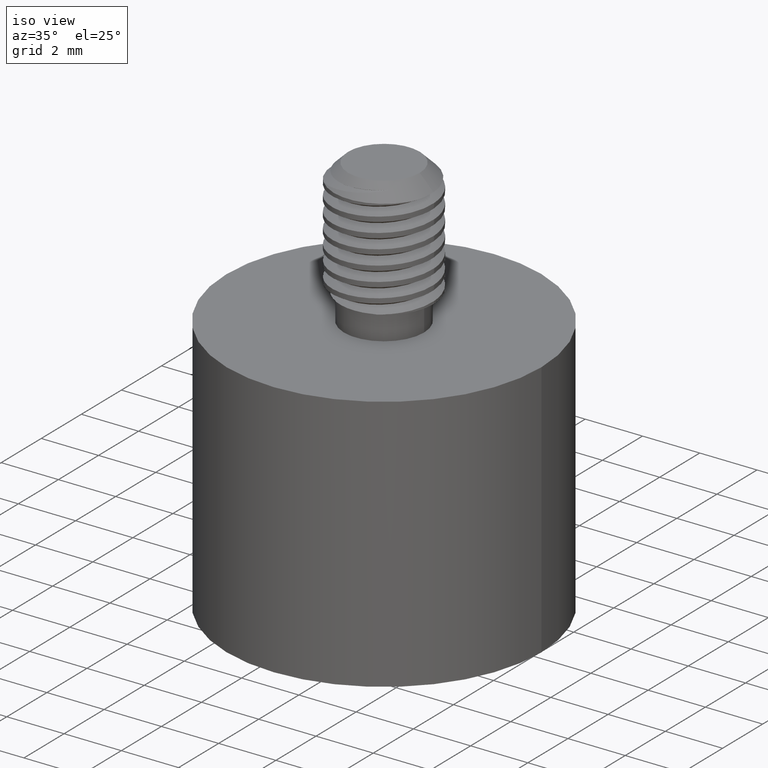
[diagram: clean part render]
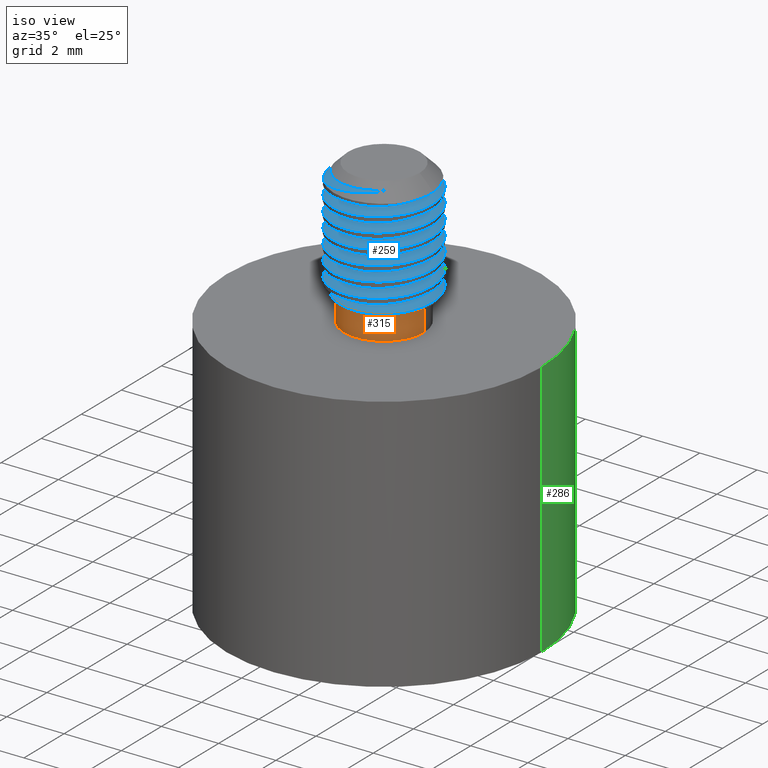
[diagram: same view with three faces highlighted in distinct colors, each labeled with its STEP entity id]
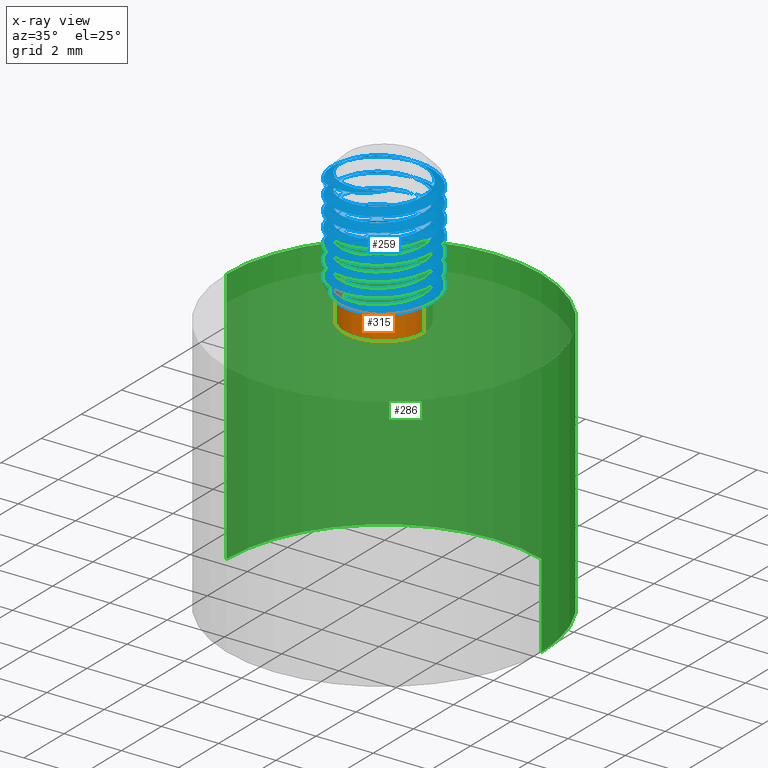
[diagram: x-ray of the same camera — body ghosted, the three highlighted faces saturated]
A machine part, iso view with three faces highlighted in distinct colors.
The next image is the same camera in x-ray (body ghosted, the three faces saturated) — at least one of them is partly hidden behind the body in this view.
Their STEP definitions:

[orange] entity #315 — the highlighted cylindrical surface (partial cylindrical patch) has radius 1.4 mm, axis along (0, 0, -1).
#6 = ORIENTED_EDGE ( 'NONE', *, *, #314, .F. ) ;
#283 = VERTEX_POINT ( 'NONE', #1916 ) ;
#285 = EDGE_CURVE ( 'NONE', #308, #283, #1914, .T. ) ;
#308 = VERTEX_POINT ( 'NONE', #2002 ) ;
#309 = VERTEX_POINT ( 'NONE', #2001 ) ;
#311 = EDGE_CURVE ( 'NONE', #309, #312, #2000, .T. ) ;
#312 = VERTEX_POINT ( 'NONE', #1996 ) ;
#314 = EDGE_CURVE ( 'NONE', #312, #283, #1994, .T. ) ;
#315 = ADVANCED_FACE ( 'NONE', ( #1995 ), #2032, .T. ) ;
#316 = EDGE_LOOP ( 'NONE', ( #317, #318, #320, #6 ) ) ;
#317 = ORIENTED_EDGE ( 'NONE', *, *, #311, .F. ) ;
#318 = ORIENTED_EDGE ( 'NONE', *, *, #319, .T. ) ;
#319 = EDGE_CURVE ( 'NONE', #309, #308, #2028, .T. ) ;
#320 = ORIENTED_EDGE ( 'NONE', *, *, #285, .T. ) ;
#1911 = DIRECTION ( 'NONE',  ( 0.0000000000000000000, 0.0000000000000000000, -1.000000000000000000 ) ) ;
#1912 = VECTOR ( 'NONE', #1911, 39.37007874015748100 ) ;
#1913 = CARTESIAN_POINT ( 'NONE',  ( -0.01901662536877801700, 0.1494433794018338600, 0.2337508207554628600 ) ) ;
#1914 = LINE ( 'NONE', #1913, #1912 ) ;
#1916 = CARTESIAN_POINT ( 'NONE',  ( -0.01901662536877801700, 0.1494433794018338600, 0.2337508207554628600 ) ) ;
#1990 = DIRECTION ( 'NONE',  ( -1.000000000000000000, 0.0000000000000000000, 0.0000000000000000000 ) ) ;
#1991 = DIRECTION ( 'NONE',  ( 0.0000000000000000000, 0.0000000000000000000, -1.000000000000000000 ) ) ;
#1992 = CARTESIAN_POINT ( 'NONE',  ( 0.03610148486744245400, 0.1494433794018338600, 0.2337508207554628600 ) ) ;
#1993 = AXIS2_PLACEMENT_3D ( 'NONE', #1992, #1991, #1990 ) ;
#1994 = CIRCLE ( 'NONE', #1993, 0.05511811023622047200 ) ;
#1995 = FACE_OUTER_BOUND ( 'NONE', #316, .T. ) ;
#1996 = CARTESIAN_POINT ( 'NONE',  ( 0.09121959510366294000, 0.1494433794018338600, 0.2337508207554628600 ) ) ;
#1997 = DIRECTION ( 'NONE',  ( 0.0000000000000000000, 0.0000000000000000000, -1.000000000000000000 ) ) ;
#1998 = VECTOR ( 'NONE', #1997, 39.37007874015748100 ) ;
#1999 = CARTESIAN_POINT ( 'NONE',  ( 0.09121959510366294000, 0.1494433794018338600, 0.2337508207554628600 ) ) ;
#2000 = LINE ( 'NONE', #1999, #1998 ) ;
#2001 = CARTESIAN_POINT ( 'NONE',  ( 0.09121959510366294000, 0.1494433794018338600, 0.2731208994956203000 ) ) ;
#2002 = CARTESIAN_POINT ( 'NONE',  ( -0.01901662536877801700, 0.1494433794018338600, 0.2731208994956203000 ) ) ;
#2025 = DIRECTION ( 'NONE',  ( -1.000000000000000000, 0.0000000000000000000, 0.0000000000000000000 ) ) ;
#2026 = DIRECTION ( 'NONE',  ( 0.0000000000000000000, 0.0000000000000000000, -1.000000000000000000 ) ) ;
#2027 = AXIS2_PLACEMENT_3D ( 'NONE', #2033, #2026, #2025 ) ;
#2028 = CIRCLE ( 'NONE', #2027, 0.05511811023622047200 ) ;
#2029 = DIRECTION ( 'NONE',  ( -1.000000000000000000, 0.0000000000000000000, 0.0000000000000000000 ) ) ;
#2030 = DIRECTION ( 'NONE',  ( 0.0000000000000000000, 0.0000000000000000000, -1.000000000000000000 ) ) ;
#2031 = AXIS2_PLACEMENT_3D ( 'NONE', #2034, #2030, #2029 ) ;
#2032 = CYLINDRICAL_SURFACE ( 'NONE', #2031, 0.05511811023622047200 ) ;
#2033 = CARTESIAN_POINT ( 'NONE',  ( 0.03610148486744245400, 0.1494433794018338600, 0.2731208994956203000 ) ) ;
#2034 = CARTESIAN_POINT ( 'NONE',  ( 0.03610148486744245400, 0.1494433794018338600, 0.2337508207554628600 ) ) ;

[blue] entity #259 — the highlighted face is a freeform B-spline surface patch.
#25 = EDGE_CURVE ( 'NONE', #26, #27, #371, .T. ) ;
#26 = VERTEX_POINT ( 'NONE', #370 ) ;
#27 = VERTEX_POINT ( 'NONE', #369 ) ;
#42 = EDGE_CURVE ( 'NONE', #43, #44, #409, .T. ) ;
#43 = VERTEX_POINT ( 'NONE', #408 ) ;
#44 = VERTEX_POINT ( 'NONE', #407 ) ;
#50 = EDGE_CURVE ( 'NONE', #51, #52, #463, .T. ) ;
#51 = VERTEX_POINT ( 'NONE', #462 ) ;
#52 = VERTEX_POINT ( 'NONE', #461 ) ;
#60 = EDGE_CURVE ( 'NONE', #44, #26, #503, .T. ) ;
#72 = EDGE_CURVE ( 'NONE', #73, #74, #551, .T. ) ;
#73 = VERTEX_POINT ( 'NONE', #550 ) ;
#74 = VERTEX_POINT ( 'NONE', #549 ) ;
#88 = EDGE_CURVE ( 'NONE', #89, #90, #590, .T. ) ;
#89 = VERTEX_POINT ( 'NONE', #589 ) ;
#90 = VERTEX_POINT ( 'NONE', #588 ) ;
#109 = EDGE_CURVE ( 'NONE', #110, #43, #696, .T. ) ;
#110 = VERTEX_POINT ( 'NONE', #695 ) ;
#123 = EDGE_CURVE ( 'NONE', #124, #125, #743, .T. ) ;
#124 = VERTEX_POINT ( 'NONE', #742 ) ;
#125 = VERTEX_POINT ( 'NONE', #741 ) ;
#139 = EDGE_CURVE ( 'NONE', #140, #141, #814, .T. ) ;
#140 = VERTEX_POINT ( 'NONE', #813 ) ;
#141 = VERTEX_POINT ( 'NONE', #812 ) ;
#149 = EDGE_CURVE ( 'NONE', #141, #124, #837, .T. ) ;
#157 = EDGE_CURVE ( 'NONE', #125, #51, #886, .T. ) ;
#166 = EDGE_CURVE ( 'NONE', #74, #140, #930, .T. ) ;
#176 = EDGE_CURVE ( 'NONE', #27, #89, #1002, .T. ) ;
#184 = EDGE_CURVE ( 'NONE', #90, #73, #1048, .T. ) ;
#187 = EDGE_CURVE ( 'NONE', #110, #209, #1037, .T. ) ;
#195 = EDGE_CURVE ( 'NONE', #52, #196, #1091, .T. ) ;
#196 = VERTEX_POINT ( 'NONE', #1127 ) ;
#209 = VERTEX_POINT ( 'NONE', #1184 ) ;
#237 = ORIENTED_EDGE ( 'NONE', *, *, #60, .F. ) ;
#238 = ORIENTED_EDGE ( 'NONE', *, *, #42, .F. ) ;
#248 = ORIENTED_EDGE ( 'NONE', *, *, #157, .F. ) ;
#249 = ORIENTED_EDGE ( 'NONE', *, *, #123, .F. ) ;
#250 = ORIENTED_EDGE ( 'NONE', *, *, #149, .F. ) ;
#251 = ORIENTED_EDGE ( 'NONE', *, *, #139, .F. ) ;
#252 = ORIENTED_EDGE ( 'NONE', *, *, #166, .F. ) ;
#253 = ORIENTED_EDGE ( 'NONE', *, *, #72, .F. ) ;
#254 = ORIENTED_EDGE ( 'NONE', *, *, #184, .F. ) ;
#255 = ORIENTED_EDGE ( 'NONE', *, *, #88, .F. ) ;
#256 = ORIENTED_EDGE ( 'NONE', *, *, #176, .F. ) ;
#257 = ORIENTED_EDGE ( 'NONE', *, *, #25, .F. ) ;
#259 = ADVANCED_FACE ( 'NONE', ( #1518 ), #1543, .F. ) ;
#260 = EDGE_LOOP ( 'NONE', ( #261, #262, #263, #266, #268, #269, #248, #249, #250, #251, #252, #253, #254, #255, #256, #257, #237, #238 ) ) ;
#261 = ORIENTED_EDGE ( 'NONE', *, *, #109, .F. ) ;
#262 = ORIENTED_EDGE ( 'NONE', *, *, #187, .T. ) ;
#263 = ORIENTED_EDGE ( 'NONE', *, *, #264, .T. ) ;
#264 = EDGE_CURVE ( 'NONE', #209, #265, #1747, .T. ) ;
#265 = VERTEX_POINT ( 'NONE', #1748 ) ;
#266 = ORIENTED_EDGE ( 'NONE', *, *, #267, .F. ) ;
#267 = EDGE_CURVE ( 'NONE', #196, #265, #1891, .T. ) ;
#268 = ORIENTED_EDGE ( 'NONE', *, *, #195, .F. ) ;
#269 = ORIENTED_EDGE ( 'NONE', *, *, #50, .F. ) ;
#360 = CARTESIAN_POINT ( 'NONE',  ( 0.1049991226627180200, 0.1494433794018338900, 0.3780571100724274800 ) ) ;
#361 = CARTESIAN_POINT ( 'NONE',  ( 0.1049991226627180200, 0.1679044458094899300, 0.3789636715068193700 ) ) ;
#362 = CARTESIAN_POINT ( 'NONE',  ( 0.09576858945888999700, 0.1838921982994716500, 0.3797487767390941300 ) ) ;
#363 = CARTESIAN_POINT ( 'NONE',  ( 0.07587955459507414500, 0.2183410171971094400, 0.3814404434057607800 ) ) ;
#364 = CARTESIAN_POINT ( 'NONE',  ( 0.03610148486744245400, 0.2183410171971094400, 0.3831321100724274800 ) ) ;
#365 = CARTESIAN_POINT ( 'NONE',  ( -0.003676584860189280200, 0.2183410171971094400, 0.3848237767390940700 ) ) ;
#366 = CARTESIAN_POINT ( 'NONE',  ( -0.02356561972400512300, 0.1838921982994716200, 0.3865154434057607700 ) ) ;
#367 = CARTESIAN_POINT ( 'NONE',  ( -0.03279615292783314600, 0.1679044458094899100, 0.3873005486380354200 ) ) ;
#368 = CARTESIAN_POINT ( 'NONE',  ( -0.03279615292783313900, 0.1494433794018338300, 0.3882071100724274700 ) ) ;
#369 = CARTESIAN_POINT ( 'NONE',  ( 0.1049991226627180300, 0.1494433794018338900, 0.3780571100724274800 ) ) ;
#370 = CARTESIAN_POINT ( 'NONE',  ( -0.03279615292783313900, 0.1494433794018338300, 0.3882071100724274200 ) ) ;
#371 =( BOUNDED_CURVE ( )  B_SPLINE_CURVE ( 2, ( #368, #367, #366, #365, #364, #363, #362, #361, #360 ),
 .UNSPECIFIED., .F., .T. ) 
 B_SPLINE_CURVE_WITH_KNOTS ( ( 3, 2, 2, 2, 3 ),
 ( 0.1749999999999999900, 0.1833333333333333200, 0.2000000000000000100, 0.2166666666666666700, 0.2250000000000000100 ),
 .UNSPECIFIED. ) 
 CURVE ( )  GEOMETRIC_REPRESENTATION_ITEM ( )  RATIONAL_B_SPLINE_CURVE ( ( 0.9330127018922194100, 0.9330127018922194100, 1.000000000000000000, 0.8660254037844388200, 1.000000000000000000, 0.8660254037844388200, 1.000000000000000000, 0.9330127018922194100, 0.9330127018922194100 ) ) 
 REPRESENTATION_ITEM ( '' )  );
#398 = CARTESIAN_POINT ( 'NONE',  ( 0.1049991226627180200, 0.1494433794018338900, 0.3983571100724273600 ) ) ;
#399 = CARTESIAN_POINT ( 'NONE',  ( 0.1049991226627180200, 0.1679044458094899300, 0.3992636715068193000 ) ) ;
#400 = CARTESIAN_POINT ( 'NONE',  ( 0.09576858945888999700, 0.1838921982994716500, 0.4000487767390940000 ) ) ;
#401 = CARTESIAN_POINT ( 'NONE',  ( 0.07587955459507414500, 0.2183410171971094400, 0.4017404434057606500 ) ) ;
#402 = CARTESIAN_POINT ( 'NONE',  ( 0.03610148486744245400, 0.2183410171971094400, 0.4034321100724274100 ) ) ;
#403 = CARTESIAN_POINT ( 'NONE',  ( -0.003676584860189280200, 0.2183410171971094400, 0.4051237767390940000 ) ) ;
#404 = CARTESIAN_POINT ( 'NONE',  ( -0.02356561972400512300, 0.1838921982994716200, 0.4068154434057608100 ) ) ;
#405 = CARTESIAN_POINT ( 'NONE',  ( -0.03279615292783314600, 0.1679044458094899100, 0.4076005486380354100 ) ) ;
#406 = CARTESIAN_POINT ( 'NONE',  ( -0.03279615292783313900, 0.1494433794018338300, 0.4085071100724274000 ) ) ;
#407 = CARTESIAN_POINT ( 'NONE',  ( 0.1049991226627180300, 0.1494433794018338900, 0.3983571100724273600 ) ) ;
#408 = CARTESIAN_POINT ( 'NONE',  ( -0.03279615292783313900, 0.1494433794018338300, 0.4085071100724274000 ) ) ;
#409 =( BOUNDED_CURVE ( )  B_SPLINE_CURVE ( 2, ( #406, #405, #404, #403, #402, #401, #400, #399, #398 ),
 .UNSPECIFIED., .F., .T. ) 
 B_SPLINE_CURVE_WITH_KNOTS ( ( 3, 2, 2, 2, 3 ),
 ( 0.07499999999999999700, 0.08333333333333332900, 0.1000000000000000100, 0.1166666666666666700, 0.1250000000000000000 ),
 .UNSPECIFIED. ) 
 CURVE ( )  GEOMETRIC_REPRESENTATION_ITEM ( )  RATIONAL_B_SPLINE_CURVE ( ( 0.9330127018922194100, 0.9330127018922194100, 1.000000000000000000, 0.8660254037844388200, 1.000000000000000000, 0.8660254037844388200, 1.000000000000000000, 0.9330127018922194100, 0.9330127018922194100 ) ) 
 REPRESENTATION_ITEM ( '' )  );
#452 = CARTESIAN_POINT ( 'NONE',  ( 0.1049991226627180200, 0.1494433794018338900, 0.2765571100724277300 ) ) ;
#453 = CARTESIAN_POINT ( 'NONE',  ( 0.1049991226627180200, 0.1679044458094899300, 0.2774636715068196600 ) ) ;
#454 = CARTESIAN_POINT ( 'NONE',  ( 0.09576858945888999700, 0.1838921982994716500, 0.2782487767390943700 ) ) ;
#455 = CARTESIAN_POINT ( 'NONE',  ( 0.07587955459507414500, 0.2183410171971094400, 0.2799404434057609600 ) ) ;
#456 = CARTESIAN_POINT ( 'NONE',  ( 0.03610148486744245400, 0.2183410171971094400, 0.2816321100724277200 ) ) ;
#457 = CARTESIAN_POINT ( 'NONE',  ( -0.003676584860189280200, 0.2183410171971094400, 0.2833237767390943100 ) ) ;
#458 = CARTESIAN_POINT ( 'NONE',  ( -0.02356561972400512300, 0.1838921982994716200, 0.2850154434057610200 ) ) ;
#459 = CARTESIAN_POINT ( 'NONE',  ( -0.03279615292783308300, 0.1679044458094900400, 0.2858005486380357200 ) ) ;
#460 = CARTESIAN_POINT ( 'NONE',  ( -0.03279615292783313900, 0.1494433794018341100, 0.2867071100724276100 ) ) ;
#461 = CARTESIAN_POINT ( 'NONE',  ( 0.1049991226627180300, 0.1494433794018338900, 0.2765571100724277300 ) ) ;
#462 = CARTESIAN_POINT ( 'NONE',  ( -0.03279615292783313900, 0.1494433794018341100, 0.2867071100724276100 ) ) ;
#463 =( BOUNDED_CURVE ( )  B_SPLINE_CURVE ( 2, ( #460, #459, #458, #457, #456, #455, #454, #453, #452 ),
 .UNSPECIFIED., .F., .T. ) 
 B_SPLINE_CURVE_WITH_KNOTS ( ( 3, 2, 2, 2, 3 ),
 ( 0.6750000000000000400, 0.6833333333333333500, 0.6999999999999999600, 0.7166666666666666700, 0.7249999999999999800 ),
 .UNSPECIFIED. ) 
 CURVE ( )  GEOMETRIC_REPRESENTATION_ITEM ( )  RATIONAL_B_SPLINE_CURVE ( ( 0.9330127018922194100, 0.9330127018922198500, 1.000000000000000000, 0.8660254037844388200, 1.000000000000000000, 0.8660254037844388200, 1.000000000000000000, 0.9330127018922194100, 0.9330127018922194100 ) ) 
 REPRESENTATION_ITEM ( '' )  );
#494 = CARTESIAN_POINT ( 'NONE',  ( -0.03279615292783313900, 0.1494433794018338300, 0.3882071100724274700 ) ) ;
#495 = CARTESIAN_POINT ( 'NONE',  ( -0.03279615292783312500, 0.1309823129941777300, 0.3891136715068194100 ) ) ;
#496 = CARTESIAN_POINT ( 'NONE',  ( -0.02356561972400507100, 0.1149945605041960300, 0.3898987767390941200 ) ) ;
#497 = CARTESIAN_POINT ( 'NONE',  ( -0.003676584860189211200, 0.08054574160655825200, 0.3915904434057607100 ) ) ;
#498 = CARTESIAN_POINT ( 'NONE',  ( 0.03610148486744246100, 0.08054574160655828000, 0.3932821100724274200 ) ) ;
#499 = CARTESIAN_POINT ( 'NONE',  ( 0.07587955459507417200, 0.08054574160655829400, 0.3949737767390940100 ) ) ;
#500 = CARTESIAN_POINT ( 'NONE',  ( 0.09576858945889001100, 0.1149945605041960800, 0.3966654434057607100 ) ) ;
#501 = CARTESIAN_POINT ( 'NONE',  ( 0.1049991226627180200, 0.1309823129941777900, 0.3974505486380353100 ) ) ;
#502 = CARTESIAN_POINT ( 'NONE',  ( 0.1049991226627180200, 0.1494433794018338900, 0.3983571100724273600 ) ) ;
#503 =( BOUNDED_CURVE ( )  B_SPLINE_CURVE ( 2, ( #502, #501, #500, #499, #498, #497, #496, #495, #494 ),
 .UNSPECIFIED., .F., .T. ) 
 B_SPLINE_CURVE_WITH_KNOTS ( ( 3, 2, 2, 2, 3 ),
 ( 0.1250000000000000000, 0.1333333333333333300, 0.1499999999999999900, 0.1666666666666666600, 0.1749999999999999900 ),
 .UNSPECIFIED. ) 
 CURVE ( )  GEOMETRIC_REPRESENTATION_ITEM ( )  RATIONAL_B_SPLINE_CURVE ( ( 0.9330127018922194100, 0.9330127018922194100, 1.000000000000000000, 0.8660254037844388200, 1.000000000000000000, 0.8660254037844388200, 1.000000000000000000, 0.9330127018922194100, 0.9330127018922194100 ) ) 
 REPRESENTATION_ITEM ( '' )  );
#540 = CARTESIAN_POINT ( 'NONE',  ( 0.1049991226627180600, 0.1494433794018337800, 0.3374571100724275100 ) ) ;
#541 = CARTESIAN_POINT ( 'NONE',  ( 0.1049991226627180800, 0.1679044458094899100, 0.3383636715068194500 ) ) ;
#542 = CARTESIAN_POINT ( 'NONE',  ( 0.09576858945888999700, 0.1838921982994716500, 0.3391487767390942200 ) ) ;
#543 = CARTESIAN_POINT ( 'NONE',  ( 0.07587955459507414500, 0.2183410171971094400, 0.3408404434057607000 ) ) ;
#544 = CARTESIAN_POINT ( 'NONE',  ( 0.03610148486744245400, 0.2183410171971094400, 0.3425321100724275100 ) ) ;
#545 = CARTESIAN_POINT ( 'NONE',  ( -0.003676584860189280200, 0.2183410171971094400, 0.3442237767390941600 ) ) ;
#546 = CARTESIAN_POINT ( 'NONE',  ( -0.02356561972400512300, 0.1838921982994716200, 0.3459154434057608600 ) ) ;
#547 = CARTESIAN_POINT ( 'NONE',  ( -0.03279615292783314600, 0.1679044458094899100, 0.3467005486380355100 ) ) ;
#548 = CARTESIAN_POINT ( 'NONE',  ( -0.03279615292783313900, 0.1494433794018338300, 0.3476071100724275600 ) ) ;
#549 = CARTESIAN_POINT ( 'NONE',  ( 0.1049991226627180600, 0.1494433794018337800, 0.3374571100724275100 ) ) ;
#550 = CARTESIAN_POINT ( 'NONE',  ( -0.03279615292783313900, 0.1494433794018338300, 0.3476071100724275600 ) ) ;
#551 =( BOUNDED_CURVE ( )  B_SPLINE_CURVE ( 2, ( #548, #547, #546, #545, #544, #543, #542, #541, #540 ),
 .UNSPECIFIED., .F., .T. ) 
 B_SPLINE_CURVE_WITH_KNOTS ( ( 3, 2, 2, 2, 3 ),
 ( 0.3750000000000000000, 0.3833333333333333600, 0.4000000000000000200, 0.4166666666666666900, 0.4250000000000000400 ),
 .UNSPECIFIED. ) 
 CURVE ( )  GEOMETRIC_REPRESENTATION_ITEM ( )  RATIONAL_B_SPLINE_CURVE ( ( 0.9330127018922194100, 0.9330127018922194100, 1.000000000000000000, 0.8660254037844388200, 1.000000000000000000, 0.8660254037844388200, 1.000000000000000000, 0.9330127018922191900, 0.9330127018922194100 ) ) 
 REPRESENTATION_ITEM ( '' )  );
#588 = CARTESIAN_POINT ( 'NONE',  ( 0.1049991226627180600, 0.1494433794018337800, 0.3577571100724275000 ) ) ;
#589 = CARTESIAN_POINT ( 'NONE',  ( -0.03279615292783313900, 0.1494433794018339400, 0.3679071100724273800 ) ) ;
#590 =( BOUNDED_CURVE ( )  B_SPLINE_CURVE ( 2, ( #627, #626, #625, #624, #623, #622, #621, #620, #619 ),
 .UNSPECIFIED., .F., .T. ) 
 B_SPLINE_CURVE_WITH_KNOTS ( ( 3, 2, 2, 2, 3 ),
 ( 0.2750000000000000200, 0.2833333333333333300, 0.2999999999999999900, 0.3166666666666666500, 0.3250000000000000100 ),
 .UNSPECIFIED. ) 
 CURVE ( )  GEOMETRIC_REPRESENTATION_ITEM ( )  RATIONAL_B_SPLINE_CURVE ( ( 0.9330127018922194100, 0.9330127018922196300, 1.000000000000000000, 0.8660254037844388200, 1.000000000000000000, 0.8660254037844388200, 1.000000000000000000, 0.9330127018922191900, 0.9330127018922194100 ) ) 
 REPRESENTATION_ITEM ( '' )  );
#619 = CARTESIAN_POINT ( 'NONE',  ( 0.1049991226627180600, 0.1494433794018337800, 0.3577571100724275000 ) ) ;
#620 = CARTESIAN_POINT ( 'NONE',  ( 0.1049991226627180800, 0.1679044458094899100, 0.3586636715068194400 ) ) ;
#621 = CARTESIAN_POINT ( 'NONE',  ( 0.09576858945888999700, 0.1838921982994716500, 0.3594487767390942000 ) ) ;
#622 = CARTESIAN_POINT ( 'NONE',  ( 0.07587955459507414500, 0.2183410171971094400, 0.3611404434057607400 ) ) ;
#623 = CARTESIAN_POINT ( 'NONE',  ( 0.03610148486744245400, 0.2183410171971094400, 0.3628321100724276000 ) ) ;
#624 = CARTESIAN_POINT ( 'NONE',  ( -0.003676584860189280200, 0.2183410171971094400, 0.3645237767390940900 ) ) ;
#625 = CARTESIAN_POINT ( 'NONE',  ( -0.02356561972400512300, 0.1838921982994716200, 0.3662154434057608400 ) ) ;
#626 = CARTESIAN_POINT ( 'NONE',  ( -0.03279615292783311800, 0.1679044458094899900, 0.3670005486380354400 ) ) ;
#627 = CARTESIAN_POINT ( 'NONE',  ( -0.03279615292783313900, 0.1494433794018339400, 0.3679071100724273800 ) ) ;
#690 = CARTESIAN_POINT ( 'NONE',  ( -0.03279615292783313900, 0.1494433794018338300, 0.4085071100724274000 ) ) ;
#691 = CARTESIAN_POINT ( 'NONE',  ( -0.03279615292783312500, 0.1309823129941777300, 0.4094136715068194500 ) ) ;
#692 = CARTESIAN_POINT ( 'NONE',  ( -0.02356561972400507100, 0.1149945605041960300, 0.4101987767390940500 ) ) ;
#693 = CARTESIAN_POINT ( 'NONE',  ( -0.01956023480703062900, 0.1080570303241262500, 0.4105394557211366500 ) ) ;
#694 = CARTESIAN_POINT ( 'NONE',  ( -0.01406995871162870100, 0.1022235663678852100, 0.4109161750861713400 ) ) ;
#695 = CARTESIAN_POINT ( 'NONE',  ( -0.01406995871162870100, 0.1022235663678852100, 0.4109161750861713400 ) ) ;
#696 =( BOUNDED_CURVE ( )  B_SPLINE_CURVE ( 2, ( #694, #693, #692, #691, #690 ),
 .UNSPECIFIED., .F., .T. ) 
 B_SPLINE_CURVE_WITH_KNOTS ( ( 3, 2, 3 ),
 ( 0.06290807732781447700, 0.06666666666666666600, 0.07499999999999999700 ),
 .UNSPECIFIED. ) 
 CURVE ( )  GEOMETRIC_REPRESENTATION_ITEM ( )  RATIONAL_B_SPLINE_CURVE ( ( 0.9532004810246336200, 0.9697866706592298500, 1.000000000000000000, 0.9330127018922194100, 0.9330127018922194100 ) ) 
 REPRESENTATION_ITEM ( '' )  );
#732 = CARTESIAN_POINT ( 'NONE',  ( 0.1049991226627180200, 0.1494433794018338900, 0.2968571100724276000 ) ) ;
#733 = CARTESIAN_POINT ( 'NONE',  ( 0.1049991226627180200, 0.1679044458094899300, 0.2977636715068195900 ) ) ;
#734 = CARTESIAN_POINT ( 'NONE',  ( 0.09576858945888999700, 0.1838921982994716500, 0.2985487767390943000 ) ) ;
#735 = CARTESIAN_POINT ( 'NONE',  ( 0.07587955459507414500, 0.2183410171971094400, 0.3002404434057609500 ) ) ;
#736 = CARTESIAN_POINT ( 'NONE',  ( 0.03610148486744245400, 0.2183410171971094400, 0.3019321100724276500 ) ) ;
#737 = CARTESIAN_POINT ( 'NONE',  ( -0.003676584860189280200, 0.2183410171971094400, 0.3036237767390942400 ) ) ;
#738 = CARTESIAN_POINT ( 'NONE',  ( -0.02356561972400512300, 0.1838921982994716200, 0.3053154434057609400 ) ) ;
#739 = CARTESIAN_POINT ( 'NONE',  ( -0.03279615292783308300, 0.1679044458094900400, 0.3061005486380356500 ) ) ;
#740 = CARTESIAN_POINT ( 'NONE',  ( -0.03279615292783313900, 0.1494433794018341100, 0.3070071100724275900 ) ) ;
#741 = CARTESIAN_POINT ( 'NONE',  ( 0.1049991226627180300, 0.1494433794018338900, 0.2968571100724276000 ) ) ;
#742 = CARTESIAN_POINT ( 'NONE',  ( -0.03279615292783313900, 0.1494433794018341100, 0.3070071100724275900 ) ) ;
#743 =( BOUNDED_CURVE ( )  B_SPLINE_CURVE ( 2, ( #740, #739, #738, #737, #736, #735, #734, #733, #732 ),
 .UNSPECIFIED., .F., .T. ) 
 B_SPLINE_CURVE_WITH_KNOTS ( ( 3, 2, 2, 2, 3 ),
 ( 0.5750000000000000700, 0.5833333333333333700, 0.5999999999999999800, 0.6166666666666667000, 0.6250000000000000000 ),
 .UNSPECIFIED. ) 
 CURVE ( )  GEOMETRIC_REPRESENTATION_ITEM ( )  RATIONAL_B_SPLINE_CURVE ( ( 0.9330127018922194100, 0.9330127018922198500, 1.000000000000000000, 0.8660254037844388200, 1.000000000000000000, 0.8660254037844388200, 1.000000000000000000, 0.9330127018922194100, 0.9330127018922194100 ) ) 
 REPRESENTATION_ITEM ( '' )  );
#803 = CARTESIAN_POINT ( 'NONE',  ( 0.1049991226627180200, 0.1494433794018338900, 0.3171571100724275800 ) ) ;
#804 = CARTESIAN_POINT ( 'NONE',  ( 0.1049991226627180200, 0.1679044458094899300, 0.3180636715068194700 ) ) ;
#805 = CARTESIAN_POINT ( 'NONE',  ( 0.09576858945888999700, 0.1838921982994716500, 0.3188487767390942300 ) ) ;
#806 = CARTESIAN_POINT ( 'NONE',  ( 0.07587955459507414500, 0.2183410171971094400, 0.3205404434057608200 ) ) ;
#807 = CARTESIAN_POINT ( 'NONE',  ( 0.03610148486744245400, 0.2183410171971094400, 0.3222321100724276400 ) ) ;
#808 = CARTESIAN_POINT ( 'NONE',  ( -0.003676584860189280200, 0.2183410171971094400, 0.3239237767390941700 ) ) ;
#809 = CARTESIAN_POINT ( 'NONE',  ( -0.02356561972400512300, 0.1838921982994716200, 0.3256154434057609300 ) ) ;
#810 = CARTESIAN_POINT ( 'NONE',  ( -0.03279615292783311800, 0.1679044458094899900, 0.3264005486380355300 ) ) ;
#811 = CARTESIAN_POINT ( 'NONE',  ( -0.03279615292783313900, 0.1494433794018339400, 0.3273071100724274700 ) ) ;
#812 = CARTESIAN_POINT ( 'NONE',  ( 0.1049991226627180300, 0.1494433794018338900, 0.3171571100724275800 ) ) ;
#813 = CARTESIAN_POINT ( 'NONE',  ( -0.03279615292783313900, 0.1494433794018339400, 0.3273071100724274700 ) ) ;
#814 =( BOUNDED_CURVE ( )  B_SPLINE_CURVE ( 2, ( #811, #810, #809, #808, #807, #806, #805, #804, #803 ),
 .UNSPECIFIED., .F., .T. ) 
 B_SPLINE_CURVE_WITH_KNOTS ( ( 3, 2, 2, 2, 3 ),
 ( 0.4750000000000000300, 0.4833333333333333400, 0.5000000000000000000, 0.5166666666666667200, 0.5250000000000000200 ),
 .UNSPECIFIED. ) 
 CURVE ( )  GEOMETRIC_REPRESENTATION_ITEM ( )  RATIONAL_B_SPLINE_CURVE ( ( 0.9330127018922194100, 0.9330127018922196300, 1.000000000000000000, 0.8660254037844388200, 1.000000000000000000, 0.8660254037844388200, 1.000000000000000000, 0.9330127018922194100, 0.9330127018922194100 ) ) 
 REPRESENTATION_ITEM ( '' )  );
#828 = CARTESIAN_POINT ( 'NONE',  ( -0.03279615292783313900, 0.1494433794018341100, 0.3070071100724275900 ) ) ;
#829 = CARTESIAN_POINT ( 'NONE',  ( -0.03279615292783318700, 0.1309823129941778700, 0.3079136715068195300 ) ) ;
#830 = CARTESIAN_POINT ( 'NONE',  ( -0.02356561972400507100, 0.1149945605041960300, 0.3086987767390942400 ) ) ;
#831 = CARTESIAN_POINT ( 'NONE',  ( -0.003676584860189211200, 0.08054574160655825200, 0.3103904434057608900 ) ) ;
#832 = CARTESIAN_POINT ( 'NONE',  ( 0.03610148486744246100, 0.08054574160655828000, 0.3120821100724276400 ) ) ;
#833 = CARTESIAN_POINT ( 'NONE',  ( 0.07587955459507417200, 0.08054574160655829400, 0.3137737767390942900 ) ) ;
#834 = CARTESIAN_POINT ( 'NONE',  ( 0.09576858945889001100, 0.1149945605041960800, 0.3154654434057609900 ) ) ;
#835 = CARTESIAN_POINT ( 'NONE',  ( 0.1049991226627180200, 0.1309823129941777900, 0.3162505486380356400 ) ) ;
#836 = CARTESIAN_POINT ( 'NONE',  ( 0.1049991226627180200, 0.1494433794018338900, 0.3171571100724275800 ) ) ;
#837 =( BOUNDED_CURVE ( )  B_SPLINE_CURVE ( 2, ( #836, #835, #834, #833, #832, #831, #830, #829, #828 ),
 .UNSPECIFIED., .F., .T. ) 
 B_SPLINE_CURVE_WITH_KNOTS ( ( 3, 2, 2, 2, 3 ),
 ( 0.5250000000000000200, 0.5333333333333333300, 0.5500000000000000400, 0.5666666666666666500, 0.5750000000000000700 ),
 .UNSPECIFIED. ) 
 CURVE ( )  GEOMETRIC_REPRESENTATION_ITEM ( )  RATIONAL_B_SPLINE_CURVE ( ( 0.9330127018922194100, 0.9330127018922194100, 1.000000000000000000, 0.8660254037844388200, 1.000000000000000000, 0.8660254037844388200, 1.000000000000000000, 0.9330127018922189700, 0.9330127018922194100 ) ) 
 REPRESENTATION_ITEM ( '' )  );
#877 = CARTESIAN_POINT ( 'NONE',  ( -0.03279615292783313900, 0.1494433794018341100, 0.2867071100724276100 ) ) ;
#878 = CARTESIAN_POINT ( 'NONE',  ( -0.03279615292783318700, 0.1309823129941778700, 0.2876136715068196000 ) ) ;
#879 = CARTESIAN_POINT ( 'NONE',  ( -0.02356561972400507100, 0.1149945605041960300, 0.2883987767390943600 ) ) ;
#880 = CARTESIAN_POINT ( 'NONE',  ( -0.003676584860189211200, 0.08054574160655825200, 0.2900904434057609600 ) ) ;
#881 = CARTESIAN_POINT ( 'NONE',  ( 0.03610148486744246100, 0.08054574160655828000, 0.2917821100724276600 ) ) ;
#882 = CARTESIAN_POINT ( 'NONE',  ( 0.07587955459507417200, 0.08054574160655829400, 0.2934737767390942500 ) ) ;
#883 = CARTESIAN_POINT ( 'NONE',  ( 0.09576858945889001100, 0.1149945605041960800, 0.2951654434057610100 ) ) ;
#884 = CARTESIAN_POINT ( 'NONE',  ( 0.1049991226627180200, 0.1309823129941777900, 0.2959505486380356600 ) ) ;
#885 = CARTESIAN_POINT ( 'NONE',  ( 0.1049991226627180200, 0.1494433794018338900, 0.2968571100724276000 ) ) ;
#886 =( BOUNDED_CURVE ( )  B_SPLINE_CURVE ( 2, ( #885, #884, #883, #882, #881, #880, #879, #878, #877 ),
 .UNSPECIFIED., .F., .T. ) 
 B_SPLINE_CURVE_WITH_KNOTS ( ( 3, 2, 2, 2, 3 ),
 ( 0.6250000000000000000, 0.6333333333333333000, 0.6500000000000000200, 0.6666666666666666300, 0.6750000000000000400 ),
 .UNSPECIFIED. ) 
 CURVE ( )  GEOMETRIC_REPRESENTATION_ITEM ( )  RATIONAL_B_SPLINE_CURVE ( ( 0.9330127018922194100, 0.9330127018922194100, 1.000000000000000000, 0.8660254037844388200, 1.000000000000000000, 0.8660254037844388200, 1.000000000000000000, 0.9330127018922189700, 0.9330127018922194100 ) ) 
 REPRESENTATION_ITEM ( '' )  );
#921 = CARTESIAN_POINT ( 'NONE',  ( -0.03279615292783313900, 0.1494433794018339400, 0.3273071100724274700 ) ) ;
#922 = CARTESIAN_POINT ( 'NONE',  ( -0.03279615292783315300, 0.1309823129941777900, 0.3282136715068195200 ) ) ;
#923 = CARTESIAN_POINT ( 'NONE',  ( -0.02356561972400507100, 0.1149945605041960300, 0.3289987767390942800 ) ) ;
#924 = CARTESIAN_POINT ( 'NONE',  ( -0.003676584860189211200, 0.08054574160655825200, 0.3306904434057608100 ) ) ;
#925 = CARTESIAN_POINT ( 'NONE',  ( 0.03610148486744246100, 0.08054574160655828000, 0.3323821100724275700 ) ) ;
#926 = CARTESIAN_POINT ( 'NONE',  ( 0.07587955459507417200, 0.08054574160655829400, 0.3340737767390940500 ) ) ;
#927 = CARTESIAN_POINT ( 'NONE',  ( 0.09576858945889001100, 0.1149945605041960800, 0.3357654434057608700 ) ) ;
#928 = CARTESIAN_POINT ( 'NONE',  ( 0.1049991226627180200, 0.1309823129941777300, 0.3365505486380356300 ) ) ;
#929 = CARTESIAN_POINT ( 'NONE',  ( 0.1049991226627180600, 0.1494433794018337800, 0.3374571100724275100 ) ) ;
#930 =( BOUNDED_CURVE ( )  B_SPLINE_CURVE ( 2, ( #929, #928, #927, #926, #925, #924, #923, #922, #921 ),
 .UNSPECIFIED., .F., .T. ) 
 B_SPLINE_CURVE_WITH_KNOTS ( ( 3, 2, 2, 2, 3 ),
 ( 0.4250000000000000400, 0.4333333333333333500, 0.4500000000000000100, 0.4666666666666666700, 0.4750000000000000300 ),
 .UNSPECIFIED. ) 
 CURVE ( )  GEOMETRIC_REPRESENTATION_ITEM ( )  RATIONAL_B_SPLINE_CURVE ( ( 0.9330127018922194100, 0.9330127018922196300, 1.000000000000000000, 0.8660254037844388200, 1.000000000000000000, 0.8660254037844388200, 1.000000000000000000, 0.9330127018922191900, 0.9330127018922194100 ) ) 
 REPRESENTATION_ITEM ( '' )  );
#993 = CARTESIAN_POINT ( 'NONE',  ( -0.03279615292783313900, 0.1494433794018339400, 0.3679071100724273800 ) ) ;
#994 = CARTESIAN_POINT ( 'NONE',  ( -0.03279615292783315300, 0.1309823129941777900, 0.3688136715068193700 ) ) ;
#995 = CARTESIAN_POINT ( 'NONE',  ( -0.02356561972400507100, 0.1149945605041960300, 0.3695987767390941400 ) ) ;
#996 = CARTESIAN_POINT ( 'NONE',  ( -0.003676584860189211200, 0.08054574160655825200, 0.3712904434057605600 ) ) ;
#997 = CARTESIAN_POINT ( 'NONE',  ( 0.03610148486744246100, 0.08054574160655828000, 0.3729821100724274900 ) ) ;
#998 = CARTESIAN_POINT ( 'NONE',  ( 0.07587955459507417200, 0.08054574160655829400, 0.3746737767390940200 ) ) ;
#999 = CARTESIAN_POINT ( 'NONE',  ( 0.09576858945889001100, 0.1149945605041960800, 0.3763654434057607800 ) ) ;
#1000 = CARTESIAN_POINT ( 'NONE',  ( 0.1049991226627180200, 0.1309823129941777900, 0.3771505486380354900 ) ) ;
#1001 = CARTESIAN_POINT ( 'NONE',  ( 0.1049991226627180200, 0.1494433794018338900, 0.3780571100724274800 ) ) ;
#1002 =( BOUNDED_CURVE ( )  B_SPLINE_CURVE ( 2, ( #1001, #1000, #999, #998, #997, #996, #995, #994, #993 ),
 .UNSPECIFIED., .F., .T. ) 
 B_SPLINE_CURVE_WITH_KNOTS ( ( 3, 2, 2, 2, 3 ),
 ( 0.2250000000000000100, 0.2333333333333333400, 0.2500000000000000000, 0.2666666666666666600, 0.2750000000000000200 ),
 .UNSPECIFIED. ) 
 CURVE ( )  GEOMETRIC_REPRESENTATION_ITEM ( )  RATIONAL_B_SPLINE_CURVE ( ( 0.9330127018922194100, 0.9330127018922194100, 1.000000000000000000, 0.8660254037844388200, 1.000000000000000000, 0.8660254037844388200, 1.000000000000000000, 0.9330127018922191900, 0.9330127018922194100 ) ) 
 REPRESENTATION_ITEM ( '' )  );
#1037 = B_SPLINE_CURVE_WITH_KNOTS ( 'NONE', 3,
 ( #1079, #1078, #1077, #1076, #1075, #1074, #1073, #1072, #1071, #1070, #1069, #1068, #1067, #1066 ),
 .UNSPECIFIED., .F., .F.,
 ( 4, 2, 2, 2, 2, 2, 4 ),
 ( 0.0000000000000000000, 0.0006208181485837711300, 0.0009312272228756564800, 0.001241636297167541600, 0.001552045371459427000, 0.001862454445751312100, 0.002483272594335083200 ),
 .UNSPECIFIED. ) ;
#1039 = CARTESIAN_POINT ( 'NONE',  ( -0.03279615292783313900, 0.1494433794018338300, 0.3476071100724275600 ) ) ;
#1040 = CARTESIAN_POINT ( 'NONE',  ( -0.03279615292783312500, 0.1309823129941777300, 0.3485136715068195000 ) ) ;
#1041 = CARTESIAN_POINT ( 'NONE',  ( -0.02356561972400507100, 0.1149945605041960300, 0.3492987767390941500 ) ) ;
#1042 = CARTESIAN_POINT ( 'NONE',  ( -0.003676584860189211200, 0.08054574160655825200, 0.3509904434057608000 ) ) ;
#1043 = CARTESIAN_POINT ( 'NONE',  ( 0.03610148486744246100, 0.08054574160655828000, 0.3526821100724275000 ) ) ;
#1044 = CARTESIAN_POINT ( 'NONE',  ( 0.07587955459507417200, 0.08054574160655829400, 0.3543737767390942000 ) ) ;
#1045 = CARTESIAN_POINT ( 'NONE',  ( 0.09576858945889001100, 0.1149945605041960800, 0.3560654434057608000 ) ) ;
#1046 = CARTESIAN_POINT ( 'NONE',  ( 0.1049991226627180200, 0.1309823129941777300, 0.3568505486380355000 ) ) ;
#1047 = CARTESIAN_POINT ( 'NONE',  ( 0.1049991226627180600, 0.1494433794018337800, 0.3577571100724275000 ) ) ;
#1048 =( BOUNDED_CURVE ( )  B_SPLINE_CURVE ( 2, ( #1047, #1046, #1045, #1044, #1043, #1042, #1041, #1040, #1039 ),
 .UNSPECIFIED., .F., .T. ) 
 B_SPLINE_CURVE_WITH_KNOTS ( ( 3, 2, 2, 2, 3 ),
 ( 0.3250000000000000100, 0.3333333333333333100, 0.3499999999999999800, 0.3666666666666666400, 0.3750000000000000000 ),
 .UNSPECIFIED. ) 
 CURVE ( )  GEOMETRIC_REPRESENTATION_ITEM ( )  RATIONAL_B_SPLINE_CURVE ( ( 0.9330127018922194100, 0.9330127018922196300, 1.000000000000000000, 0.8660254037844388200, 1.000000000000000000, 0.8660254037844388200, 1.000000000000000000, 0.9330127018922194100, 0.9330127018922194100 ) ) 
 REPRESENTATION_ITEM ( '' )  );
#1066 = CARTESIAN_POINT ( 'NONE',  ( 0.07382450167280711600, 0.1067119623518204100, 0.4228138128814468700 ) ) ;
#1067 = CARTESIAN_POINT ( 'NONE',  ( 0.06847105218513287200, 0.1004934077288503200, 0.4216948762840395700 ) ) ;
#1068 = CARTESIAN_POINT ( 'NONE',  ( 0.06186049086312713600, 0.09549812573016816500, 0.4205776003974869800 ) ) ;
#1069 = CARTESIAN_POINT ( 'NONE',  ( 0.05085170085593163100, 0.09032064128838157600, 0.4190117154241747600 ) ) ;
#1070 = CARTESIAN_POINT ( 'NONE',  ( 0.04693443519282251100, 0.08895932873724138300, 0.4184991779612035100 ) ) ;
#1071 = CARTESIAN_POINT ( 'NONE',  ( 0.03904401720330806500, 0.08711302328349024300, 0.4175438919866784100 ) ) ;
#1072 = CARTESIAN_POINT ( 'NONE',  ( 0.03502795635592365800, 0.08661792653112911100, 0.4171094642170771200 ) ) ;
#1073 = CARTESIAN_POINT ( 'NONE',  ( 0.02689120759807540500, 0.08635294521974933000, 0.4161830228328294900 ) ) ;
#1074 = CARTESIAN_POINT ( 'NONE',  ( 0.02277297878646946900, 0.08660118755455235900, 0.4156996131880185100 ) ) ;
#1075 = CARTESIAN_POINT ( 'NONE',  ( 0.01476907917405113700, 0.08782867728397640600, 0.4147347570989027300 ) ) ;
#1076 = CARTESIAN_POINT ( 'NONE',  ( 0.01083927834633519000, 0.08880432863393390700, 0.4142483344130902800 ) ) ;
#1077 = CARTESIAN_POINT ( 'NONE',  ( -0.0007279262466758959100, 0.09284629377385776600, 0.4127774849215763400 ) ) ;
#1078 = CARTESIAN_POINT ( 'NONE',  ( -0.007813128852158388000, 0.09690104146972462800, 0.4118245597234582700 ) ) ;
#1079 = CARTESIAN_POINT ( 'NONE',  ( -0.01406995871162870100, 0.1022235663678852100, 0.4109161750861713400 ) ) ;
#1084 = CARTESIAN_POINT ( 'NONE',  ( 0.06961357453729065400, 0.08924517062674623700, 0.2731208994956202400 ) ) ;
#1085 = CARTESIAN_POINT ( 'NONE',  ( 0.08624890992479265800, 0.09850599187936585900, 0.2740557447624910000 ) ) ;
#1086 = CARTESIAN_POINT ( 'NONE',  ( 0.09576858945889001100, 0.1149945605041960800, 0.2748654434057610800 ) ) ;
#1087 = CARTESIAN_POINT ( 'NONE',  ( 0.1049991226627180200, 0.1309823129941777900, 0.2756505486380357300 ) ) ;
#1088 = CARTESIAN_POINT ( 'NONE',  ( 0.1049991226627180200, 0.1494433794018338900, 0.2765571100724277300 ) ) ;
#1091 =( BOUNDED_CURVE ( )  B_SPLINE_CURVE ( 2, ( #1088, #1087, #1086, #1085, #1084 ),
 .UNSPECIFIED., .F., .T. ) 
 B_SPLINE_CURVE_WITH_KNOTS ( ( 3, 2, 3 ),
 ( 0.7249999999999999800, 0.7333333333333332800, 0.7419097117543056500 ),
 .UNSPECIFIED. ) 
 CURVE ( )  GEOMETRIC_REPRESENTATION_ITEM ( )  RATIONAL_B_SPLINE_CURVE ( ( 0.9330127018922194100, 0.9330127018922194100, 1.000000000000000000, 0.9310589898435027700, 0.9330696827061516500 ) ) 
 REPRESENTATION_ITEM ( '' )  );
#1127 = CARTESIAN_POINT ( 'NONE',  ( 0.06961357453729065400, 0.08924517062674622300, 0.2731208994956202400 ) ) ;
#1184 = CARTESIAN_POINT ( 'NONE',  ( 0.07382450167280711600, 0.1067119623518204100, 0.4228138128814468700 ) ) ;
#1250 = CARTESIAN_POINT ( 'NONE',  ( 0.1006899328831555400, 0.1867335372502459700, 0.3358678811229172100 ) ) ;
#1251 = CARTESIAN_POINT ( 'NONE',  ( 0.07916045021125117700, 0.2240236950986580500, 0.3375595477895838600 ) ) ;
#1252 = CARTESIAN_POINT ( 'NONE',  ( 0.03610148486744245400, 0.2240236950986580800, 0.3392512144562505600 ) ) ;
#1253 = CARTESIAN_POINT ( 'NONE',  ( -0.006957480476366319900, 0.2240236950986580500, 0.3409428811229172600 ) ) ;
#1254 = CARTESIAN_POINT ( 'NONE',  ( -0.02848696314827067400, 0.1867335372502459100, 0.3426345477895838500 ) ) ;
#1256 = CARTESIAN_POINT ( 'NONE',  ( -0.05001644582017500400, 0.1494433794018338300, 0.3443262144562505600 ) ) ;
#1257 = CARTESIAN_POINT ( 'NONE',  ( -0.02848696314827062200, 0.1121532215534217200, 0.3460178811229171500 ) ) ;
#1258 = CARTESIAN_POINT ( 'NONE',  ( -0.006957480476366250500, 0.07486306370500962800, 0.3477095477895838500 ) ) ;
#1518 = FACE_OUTER_BOUND ( 'NONE', #260, .T. ) ;
#1525 = CARTESIAN_POINT ( 'NONE',  ( 0.06901045021125112900, 0.2064433794018338800, 0.4086095477895836900 ) ) ;
#1526 = CARTESIAN_POINT ( 'NONE',  ( 0.03610148486744245400, 0.2064433794018338800, 0.4103012144562503400 ) ) ;
#1527 = CARTESIAN_POINT ( 'NONE',  ( 0.003192519523633744000, 0.2064433794018338800, 0.4119928811229170400 ) ) ;
#1528 = CARTESIAN_POINT ( 'NONE',  ( -0.01326196314827059000, 0.1779433794018338600, 0.4136845477895836900 ) ) ;
#1529 = CARTESIAN_POINT ( 'NONE',  ( -0.02971644582017489800, 0.1494433794018338300, 0.4153762144562503400 ) ) ;
#1530 = CARTESIAN_POINT ( 'NONE',  ( -0.01326196314827054700, 0.1209433794018338300, 0.4170678811229170400 ) ) ;
#1531 = CARTESIAN_POINT ( 'NONE',  ( 0.003192519523633797800, 0.09244337940183385000, 0.4187595477895835700 ) ) ;
#1532 = CARTESIAN_POINT ( 'NONE',  ( 0.03610148486744246100, 0.09244337940183385000, 0.4204512144562503300 ) ) ;
#1533 = CARTESIAN_POINT ( 'NONE',  ( 0.06901045021125114300, 0.09244337940183386400, 0.4221428811229169200 ) ) ;
#1534 = CARTESIAN_POINT ( 'NONE',  ( 0.08546493288315545900, 0.1209433794018338600, 0.4238345477895836800 ) ) ;
#1535 = CARTESIAN_POINT ( 'NONE',  ( 0.1019194155550598000, 0.1494433794018338600, 0.4255262144562503300 ) ) ;
#1536 = CARTESIAN_POINT ( 'NONE',  ( 0.08546493288315545900, 0.1779433794018338800, 0.4272178811229169800 ) ) ;
#1537 = CARTESIAN_POINT ( 'NONE',  ( 0.06901045021125112900, 0.2064433794018338800, 0.4289095477895836800 ) ) ;
#1538 = CARTESIAN_POINT ( 'NONE',  ( 0.03610148486744245400, 0.2064433794018338800, 0.4306012144562503300 ) ) ;
#1543 =( BOUNDED_SURFACE ( )  B_SPLINE_SURFACE ( 1, 2, ( 
 ( #1538, #1537, #1536, #1535, #1534, #1533, #1532, #1531, #1530, #1529, #1528, #1527, #1526, #1525, #1596, #1595, #1594, #1593, #1592, #1591, #1590, #1589, #1588, #1587, #1586, #1585, #1584, #1583, #1582, #1581, #1580, #1579, #1578, #1577, #1576, #1575, #1574, #1573, #1572, #1571, #1570, #1569, #1568, #1567, #1566, #1565, #1564, #1563, #1562, #1561, #1560, #1559, #1558, #1557, #1556, #1555, #1554, #1553, #1552, #1551, #1550, #1549, #1548, #1547, #1546, #1647, #1646, #1645, #1644, #1643, #1642, #1641, #1640, #1639, #1638, #1637, #1636, #1635, #1634, #1633, #1632, #1631, #1630, #1629, #1628, #1627, #1626, #1625, #1624, #1623, #1622, #1621, #1620, #1619, #1618, #1617, #1616, #1615, #1614, #1613, #1612, #1611, #1610, #1609, #1608, #1607, #1606, #1605, #1604, #1603, #1602, #1601, #1600, #1599, #1598, #1597, #1695, #1694, #1693, #1692, #1691 ),
 ( #1690, #1689, #1688, #1687, #1686, #1685, #1684, #1683, #1682, #1681, #1680, #1679, #1678, #1677, #1676, #1675, #1674, #1673, #1672, #1671, #1670, #1669, #1668, #1667, #1666, #1665, #1664, #1663, #1662, #1661, #1660, #1659, #1658, #1657, #1656, #1655, #1654, #1653, #1652, #1651, #1650, #1649, #1648, #1258, #1257, #1256, #1254, #1253, #1252, #1251, #1250, #1746, #1745, #1744, #1743, #1742, #1741, #1740, #1739, #1738, #1737, #1736, #1735, #1734, #1733, #1732, #1731, #1730, #1729, #1728, #1727, #1726, #1725, #1724, #1723, #1722, #1721, #1720, #1719, #1718, #1717, #1716, #1715, #1714, #1713, #1712, #1711, #1710, #1709, #1708, #1707, #1706, #1705, #1704, #1703, #1702, #1701, #1700, #1699, #1698, #1697, #1696, #1767, #1766, #1765, #1764, #1763, #1762, #1761, #1760, #1759, #1758, #1757, #1756, #1755, #1754, #1753, #1752, #1751, #1750, #1749 ) ),
 .UNSPECIFIED., .F., .F., .T. ) 
 B_SPLINE_SURFACE_WITH_KNOTS ( ( 2, 2 ),
 ( 3, 2, 2, 2, 2, 2, 2, 2, 2, 2, 2, 2, 2, 2, 2, 2, 2, 2, 2, 2, 2, 2, 2, 2, 2, 2, 2, 2, 2, 2, 2, 2, 2, 2, 2, 2, 2, 2, 2, 2, 2, 2, 2, 2, 2, 2, 2, 2, 2, 2, 2, 2, 2, 2, 2, 2, 2, 2, 2, 2, 3 ),
 ( 0.0000000000000000000, 1.000000000000000000 ),
 ( 0.0000000000000000000, 0.01666666666666666600, 0.03333333333333333300, 0.05000000000000000300, 0.06666666666666666600, 0.08333333333333332900, 0.1000000000000000100, 0.1166666666666666700, 0.1333333333333333300, 0.1499999999999999900, 0.1666666666666666600, 0.1833333333333333200, 0.2000000000000000100, 0.2166666666666666700, 0.2333333333333333400, 0.2500000000000000000, 0.2666666666666666600, 0.2833333333333333300, 0.2999999999999999900, 0.3166666666666666500, 0.3333333333333333100, 0.3499999999999999800, 0.3666666666666666400, 0.3833333333333333600, 0.4000000000000000200, 0.4166666666666666900, 0.4333333333333333500, 0.4500000000000000100, 0.4666666666666666700, 0.4833333333333333400, 0.5000000000000000000, 0.5166666666666667200, 0.5333333333333333300, 0.5500000000000000400, 0.5666666666666666500, 0.5833333333333333700, 0.5999999999999999800, 0.6166666666666667000, 0.6333333333333333000, 0.6500000000000000200, 0.6666666666666666300, 0.6833333333333333500, 0.6999999999999999600, 0.7166666666666666700, 0.7333333333333332800, 0.7500000000000000000, 0.7666666666666667200, 0.7833333333333333300, 0.8000000000000000400, 0.8166666666666666500, 0.8333333333333333700, 0.8499999999999999800, 0.8666666666666667000, 0.8833333333333333000, 0.9000000000000000200, 0.9166666666666666300, 0.9333333333333333500, 0.9499999999999999600, 0.9666666666666666700, 0.9833333333333332800, 1.000000000000000000 ),
 .UNSPECIFIED. ) 
 GEOMETRIC_REPRESENTATION_ITEM ( )  RATIONAL_B_SPLINE_SURFACE ( (
 ( 1.000000000000000000, 0.8660254037844387100, 1.000000000000000000, 0.8660254037844387100, 1.000000000000000000, 0.8660254037844387100, 1.000000000000000000, 0.8660254037844387100, 1.000000000000000000, 0.8660254037844387100, 1.000000000000000000, 0.8660254037844387100, 1.000000000000000000, 0.8660254037844387100, 1.000000000000000000, 0.8660254037844387100, 1.000000000000000000, 0.8660254037844387100, 1.000000000000000000, 0.8660254037844387100, 1.000000000000000000, 0.8660254037844387100, 1.000000000000000000, 0.8660254037844387100, 1.000000000000000000, 0.8660254037844387100, 1.000000000000000000, 0.8660254037844387100, 1.000000000000000000, 0.8660254037844387100, 1.000000000000000000, 0.8660254037844387100, 1.000000000000000000, 0.8660254037844387100, 1.000000000000000000, 0.8660254037844387100, 1.000000000000000000, 0.8660254037844387100, 1.000000000000000000, 0.8660254037844387100, 1.000000000000000000, 0.8660254037844387100, 1.000000000000000000, 0.8660254037844387100, 1.000000000000000000, 0.8660254037844387100, 1.000000000000000000, 0.8660254037844387100, 1.000000000000000000, 0.8660254037844387100, 1.000000000000000000, 0.8660254037844387100, 1.000000000000000000, 0.8660254037844387100, 1.000000000000000000, 0.8660254037844387100, 1.000000000000000000, 0.8660254037844387100, 1.000000000000000000, 0.8660254037844387100, 1.000000000000000000, 0.8660254037844387100, 1.000000000000000000, 0.8660254037844387100, 1.000000000000000000, 0.8660254037844387100, 1.000000000000000000, 0.8660254037844387100, 1.000000000000000000, 0.8660254037844387100, 1.000000000000000000, 0.8660254037844387100, 1.000000000000000000, 0.8660254037844387100, 1.000000000000000000, 0.8660254037844387100, 1.000000000000000000, 0.8660254037844387100, 1.000000000000000000, 0.8660254037844387100, 1.000000000000000000, 0.8660254037844387100, 1.000000000000000000, 0.8660254037844387100, 1.000000000000000000, 0.8660254037844387100, 1.000000000000000000, 0.8660254037844387100, 1.000000000000000000, 0.8660254037844387100, 1.000000000000000000, 0.8660254037844387100, 1.000000000000000000, 0.8660254037844387100, 1.000000000000000000, 0.8660254037844387100, 1.000000000000000000, 0.8660254037844387100, 1.000000000000000000, 0.8660254037844387100, 1.000000000000000000, 0.8660254037844387100, 1.000000000000000000, 0.8660254037844387100, 1.000000000000000000, 0.8660254037844387100, 1.000000000000000000, 0.8660254037844387100, 1.000000000000000000, 0.8660254037844387100, 1.000000000000000000, 0.8660254037844387100, 1.000000000000000000, 0.8660254037844387100, 1.000000000000000000, 0.8660254037844387100, 1.000000000000000000, 0.8660254037844387100, 1.000000000000000000, 0.8660254037844387100, 1.000000000000000000),
 ( 1.000000000000000000, 0.8660254037844387100, 1.000000000000000000, 0.8660254037844387100, 1.000000000000000000, 0.8660254037844387100, 1.000000000000000000, 0.8660254037844387100, 1.000000000000000000, 0.8660254037844387100, 1.000000000000000000, 0.8660254037844387100, 1.000000000000000000, 0.8660254037844387100, 1.000000000000000000, 0.8660254037844387100, 1.000000000000000000, 0.8660254037844387100, 1.000000000000000000, 0.8660254037844387100, 1.000000000000000000, 0.8660254037844387100, 1.000000000000000000, 0.8660254037844387100, 1.000000000000000000, 0.8660254037844387100, 1.000000000000000000, 0.8660254037844387100, 1.000000000000000000, 0.8660254037844387100, 1.000000000000000000, 0.8660254037844387100, 1.000000000000000000, 0.8660254037844387100, 1.000000000000000000, 0.8660254037844387100, 1.000000000000000000, 0.8660254037844387100, 1.000000000000000000, 0.8660254037844387100, 1.000000000000000000, 0.8660254037844387100, 1.000000000000000000, 0.8660254037844387100, 1.000000000000000000, 0.8660254037844387100, 1.000000000000000000, 0.8660254037844387100, 1.000000000000000000, 0.8660254037844387100, 1.000000000000000000, 0.8660254037844387100, 1.000000000000000000, 0.8660254037844387100, 1.000000000000000000, 0.8660254037844387100, 1.000000000000000000, 0.8660254037844387100, 1.000000000000000000, 0.8660254037844387100, 1.000000000000000000, 0.8660254037844387100, 1.000000000000000000, 0.8660254037844387100, 1.000000000000000000, 0.8660254037844387100, 1.000000000000000000, 0.8660254037844387100, 1.000000000000000000, 0.8660254037844387100, 1.000000000000000000, 0.8660254037844387100, 1.000000000000000000, 0.8660254037844387100, 1.000000000000000000, 0.8660254037844387100, 1.000000000000000000, 0.8660254037844387100, 1.000000000000000000, 0.8660254037844387100, 1.000000000000000000, 0.8660254037844387100, 1.000000000000000000, 0.8660254037844387100, 1.000000000000000000, 0.8660254037844387100, 1.000000000000000000, 0.8660254037844387100, 1.000000000000000000, 0.8660254037844387100, 1.000000000000000000, 0.8660254037844387100, 1.000000000000000000, 0.8660254037844387100, 1.000000000000000000, 0.8660254037844387100, 1.000000000000000000, 0.8660254037844387100, 1.000000000000000000, 0.8660254037844387100, 1.000000000000000000, 0.8660254037844387100, 1.000000000000000000, 0.8660254037844387100, 1.000000000000000000, 0.8660254037844387100, 1.000000000000000000, 0.8660254037844387100, 1.000000000000000000, 0.8660254037844387100, 1.000000000000000000, 0.8660254037844387100, 1.000000000000000000, 0.8660254037844387100, 1.000000000000000000, 0.8660254037844387100, 1.000000000000000000, 0.8660254037844387100, 1.000000000000000000, 0.8660254037844387100, 1.000000000000000000) ) ) 
 REPRESENTATION_ITEM ( '' )  SURFACE ( )  );
#1546 = CARTESIAN_POINT ( 'NONE',  ( 0.08546493288315545900, 0.1209433794018338600, 0.3223345477895838700 ) ) ;
#1547 = CARTESIAN_POINT ( 'NONE',  ( 0.1019194155550598000, 0.1494433794018338600, 0.3240262144562504600 ) ) ;
#1548 = CARTESIAN_POINT ( 'NONE',  ( 0.08546493288315545900, 0.1779433794018338800, 0.3257178811229172700 ) ) ;
#1549 = CARTESIAN_POINT ( 'NONE',  ( 0.06901045021125112900, 0.2064433794018338800, 0.3274095477895839200 ) ) ;
#1550 = CARTESIAN_POINT ( 'NONE',  ( 0.03610148486744245400, 0.2064433794018338800, 0.3291012144562505700 ) ) ;
#1551 = CARTESIAN_POINT ( 'NONE',  ( 0.003192519523633744000, 0.2064433794018338800, 0.3307928811229171600 ) ) ;
#1552 = CARTESIAN_POINT ( 'NONE',  ( -0.01326196314827059000, 0.1779433794018338600, 0.3324845477895839200 ) ) ;
#1553 = CARTESIAN_POINT ( 'NONE',  ( -0.02971644582017489800, 0.1494433794018338300, 0.3341762144562505100 ) ) ;
#1554 = CARTESIAN_POINT ( 'NONE',  ( -0.01326196314827054700, 0.1209433794018338300, 0.3358678811229172100 ) ) ;
#1555 = CARTESIAN_POINT ( 'NONE',  ( 0.003192519523633797800, 0.09244337940183385000, 0.3375595477895838600 ) ) ;
#1556 = CARTESIAN_POINT ( 'NONE',  ( 0.03610148486744246100, 0.09244337940183385000, 0.3392512144562505600 ) ) ;
#1557 = CARTESIAN_POINT ( 'NONE',  ( 0.06901045021125114300, 0.09244337940183386400, 0.3409428811229172600 ) ) ;
#1558 = CARTESIAN_POINT ( 'NONE',  ( 0.08546493288315545900, 0.1209433794018338600, 0.3426345477895838500 ) ) ;
#1559 = CARTESIAN_POINT ( 'NONE',  ( 0.1019194155550598000, 0.1494433794018338600, 0.3443262144562505000 ) ) ;
#1560 = CARTESIAN_POINT ( 'NONE',  ( 0.08546493288315545900, 0.1779433794018338800, 0.3460178811229171500 ) ) ;
#1561 = CARTESIAN_POINT ( 'NONE',  ( 0.06901045021125112900, 0.2064433794018338800, 0.3477095477895838500 ) ) ;
#1562 = CARTESIAN_POINT ( 'NONE',  ( 0.03610148486744245400, 0.2064433794018338800, 0.3494012144562505000 ) ) ;
#1563 = CARTESIAN_POINT ( 'NONE',  ( 0.003192519523633744000, 0.2064433794018338800, 0.3510928811229171400 ) ) ;
#1564 = CARTESIAN_POINT ( 'NONE',  ( -0.01326196314827059000, 0.1779433794018338600, 0.3527845477895837900 ) ) ;
#1565 = CARTESIAN_POINT ( 'NONE',  ( -0.02971644582017489800, 0.1494433794018338300, 0.3544762144562504900 ) ) ;
#1566 = CARTESIAN_POINT ( 'NONE',  ( -0.01326196314827054700, 0.1209433794018338300, 0.3561678811229171400 ) ) ;
#1567 = CARTESIAN_POINT ( 'NONE',  ( 0.003192519523633797800, 0.09244337940183385000, 0.3578595477895839000 ) ) ;
#1568 = CARTESIAN_POINT ( 'NONE',  ( 0.03610148486744246100, 0.09244337940183385000, 0.3595512144562504300 ) ) ;
#1569 = CARTESIAN_POINT ( 'NONE',  ( 0.06901045021125114300, 0.09244337940183386400, 0.3612428811229172500 ) ) ;
#1570 = CARTESIAN_POINT ( 'NONE',  ( 0.08546493288315545900, 0.1209433794018338600, 0.3629345477895838400 ) ) ;
#1571 = CARTESIAN_POINT ( 'NONE',  ( 0.1019194155550598000, 0.1494433794018338600, 0.3646262144562504300 ) ) ;
#1572 = CARTESIAN_POINT ( 'NONE',  ( 0.08546493288315545900, 0.1779433794018338800, 0.3663178811229170800 ) ) ;
#1573 = CARTESIAN_POINT ( 'NONE',  ( 0.06901045021125112900, 0.2064433794018338800, 0.3680095477895837800 ) ) ;
#1574 = CARTESIAN_POINT ( 'NONE',  ( 0.03610148486744245400, 0.2064433794018338800, 0.3697012144562504800 ) ) ;
#1575 = CARTESIAN_POINT ( 'NONE',  ( 0.003192519523633744000, 0.2064433794018338800, 0.3713928811229171300 ) ) ;
#1576 = CARTESIAN_POINT ( 'NONE',  ( -0.01326196314827059000, 0.1779433794018338600, 0.3730845477895837800 ) ) ;
#1577 = CARTESIAN_POINT ( 'NONE',  ( -0.02971644582017489800, 0.1494433794018338300, 0.3747762144562503100 ) ) ;
#1578 = CARTESIAN_POINT ( 'NONE',  ( -0.01326196314827054700, 0.1209433794018338300, 0.3764678811229171300 ) ) ;
#1579 = CARTESIAN_POINT ( 'NONE',  ( 0.003192519523633797800, 0.09244337940183385000, 0.3781595477895837200 ) ) ;
#1580 = CARTESIAN_POINT ( 'NONE',  ( 0.03610148486744246100, 0.09244337940183385000, 0.3798512144562504200 ) ) ;
#1581 = CARTESIAN_POINT ( 'NONE',  ( 0.06901045021125114300, 0.09244337940183386400, 0.3815428811229170700 ) ) ;
#1582 = CARTESIAN_POINT ( 'NONE',  ( 0.08546493288315545900, 0.1209433794018338600, 0.3832345477895837700 ) ) ;
#1583 = CARTESIAN_POINT ( 'NONE',  ( 0.1019194155550598000, 0.1494433794018338600, 0.3849262144562504200 ) ) ;
#1584 = CARTESIAN_POINT ( 'NONE',  ( 0.08546493288315545900, 0.1779433794018338800, 0.3866178811229170600 ) ) ;
#1585 = CARTESIAN_POINT ( 'NONE',  ( 0.06901045021125112900, 0.2064433794018338800, 0.3883095477895836500 ) ) ;
#1586 = CARTESIAN_POINT ( 'NONE',  ( 0.03610148486744245400, 0.2064433794018338800, 0.3900012144562504100 ) ) ;
#1587 = CARTESIAN_POINT ( 'NONE',  ( 0.003192519523633744000, 0.2064433794018338800, 0.3916928811229171700 ) ) ;
#1588 = CARTESIAN_POINT ( 'NONE',  ( -0.01326196314827059000, 0.1779433794018338600, 0.3933845477895837100 ) ) ;
#1589 = CARTESIAN_POINT ( 'NONE',  ( -0.02971644582017489800, 0.1494433794018338300, 0.3950762144562503500 ) ) ;
#1590 = CARTESIAN_POINT ( 'NONE',  ( -0.01326196314827054700, 0.1209433794018338300, 0.3967678811229170500 ) ) ;
#1591 = CARTESIAN_POINT ( 'NONE',  ( 0.003192519523633797800, 0.09244337940183385000, 0.3984595477895837000 ) ) ;
#1592 = CARTESIAN_POINT ( 'NONE',  ( 0.03610148486744246100, 0.09244337940183385000, 0.4001512144562503500 ) ) ;
#1593 = CARTESIAN_POINT ( 'NONE',  ( 0.06901045021125114300, 0.09244337940183386400, 0.4018428811229170500 ) ) ;
#1594 = CARTESIAN_POINT ( 'NONE',  ( 0.08546493288315545900, 0.1209433794018338600, 0.4035345477895837000 ) ) ;
#1595 = CARTESIAN_POINT ( 'NONE',  ( 0.1019194155550598000, 0.1494433794018338600, 0.4052262144562504600 ) ) ;
#1596 = CARTESIAN_POINT ( 'NONE',  ( 0.08546493288315545900, 0.1779433794018338800, 0.4069178811229169900 ) ) ;
#1597 = CARTESIAN_POINT ( 'NONE',  ( 0.003192519523633797800, 0.09244337940183385000, 0.2360595477895841600 ) ) ;
#1598 = CARTESIAN_POINT ( 'NONE',  ( 0.03610148486744246100, 0.09244337940183385000, 0.2377512144562508000 ) ) ;
#1599 = CARTESIAN_POINT ( 'NONE',  ( 0.06901045021125114300, 0.09244337940183386400, 0.2394428811229174200 ) ) ;
#1600 = CARTESIAN_POINT ( 'NONE',  ( 0.08546493288315545900, 0.1209433794018338600, 0.2411345477895840700 ) ) ;
#1601 = CARTESIAN_POINT ( 'NONE',  ( 0.1019194155550598000, 0.1494433794018338600, 0.2428262144562507400 ) ) ;
#1602 = CARTESIAN_POINT ( 'NONE',  ( 0.08546493288315545900, 0.1779433794018338800, 0.2445178811229174500 ) ) ;
#1603 = CARTESIAN_POINT ( 'NONE',  ( 0.06901045021125112900, 0.2064433794018338800, 0.2462095477895840700 ) ) ;
#1604 = CARTESIAN_POINT ( 'NONE',  ( 0.03610148486744245400, 0.2064433794018338800, 0.2479012144562507700 ) ) ;
#1605 = CARTESIAN_POINT ( 'NONE',  ( 0.003192519523633744000, 0.2064433794018338800, 0.2495928811229173600 ) ) ;
#1606 = CARTESIAN_POINT ( 'NONE',  ( -0.01326196314827059000, 0.1779433794018338600, 0.2512845477895840900 ) ) ;
#1607 = CARTESIAN_POINT ( 'NONE',  ( -0.02971644582017489800, 0.1494433794018338300, 0.2529762144562507900 ) ) ;
#1608 = CARTESIAN_POINT ( 'NONE',  ( -0.01326196314827054700, 0.1209433794018338300, 0.2546678811229173800 ) ) ;
#1609 = CARTESIAN_POINT ( 'NONE',  ( 0.003192519523633797800, 0.09244337940183385000, 0.2563595477895840300 ) ) ;
#1610 = CARTESIAN_POINT ( 'NONE',  ( 0.03610148486744246100, 0.09244337940183385000, 0.2580512144562507300 ) ) ;
#1611 = CARTESIAN_POINT ( 'NONE',  ( 0.06901045021125114300, 0.09244337940183386400, 0.2597428811229174400 ) ) ;
#1612 = CARTESIAN_POINT ( 'NONE',  ( 0.08546493288315545900, 0.1209433794018338600, 0.2614345477895840300 ) ) ;
#1613 = CARTESIAN_POINT ( 'NONE',  ( 0.1019194155550598000, 0.1494433794018338600, 0.2631262144562506200 ) ) ;
#1614 = CARTESIAN_POINT ( 'NONE',  ( 0.08546493288315545900, 0.1779433794018338800, 0.2648178811229173800 ) ) ;
#1615 = CARTESIAN_POINT ( 'NONE',  ( 0.06901045021125112900, 0.2064433794018338800, 0.2665095477895840800 ) ) ;
#1616 = CARTESIAN_POINT ( 'NONE',  ( 0.03610148486744245400, 0.2064433794018338800, 0.2682012144562506700 ) ) ;
#1617 = CARTESIAN_POINT ( 'NONE',  ( 0.003192519523633744000, 0.2064433794018338800, 0.2698928811229173700 ) ) ;
#1618 = CARTESIAN_POINT ( 'NONE',  ( -0.01326196314827059000, 0.1779433794018338600, 0.2715845477895840200 ) ) ;
#1619 = CARTESIAN_POINT ( 'NONE',  ( -0.02971644582017489800, 0.1494433794018338300, 0.2732762144562507200 ) ) ;
#1620 = CARTESIAN_POINT ( 'NONE',  ( -0.01326196314827054700, 0.1209433794018338300, 0.2749678811229174200 ) ) ;
#1621 = CARTESIAN_POINT ( 'NONE',  ( 0.003192519523633797800, 0.09244337940183385000, 0.2766595477895840100 ) ) ;
#1622 = CARTESIAN_POINT ( 'NONE',  ( 0.03610148486744246100, 0.09244337940183385000, 0.2783512144562506600 ) ) ;
#1623 = CARTESIAN_POINT ( 'NONE',  ( 0.06901045021125114300, 0.09244337940183386400, 0.2800428811229173600 ) ) ;
#1624 = CARTESIAN_POINT ( 'NONE',  ( 0.08546493288315545900, 0.1209433794018338600, 0.2817345477895840100 ) ) ;
#1625 = CARTESIAN_POINT ( 'NONE',  ( 0.1019194155550598000, 0.1494433794018338600, 0.2834262144562506600 ) ) ;
#1626 = CARTESIAN_POINT ( 'NONE',  ( 0.08546493288315545900, 0.1779433794018338800, 0.2851178811229173600 ) ) ;
#1627 = CARTESIAN_POINT ( 'NONE',  ( 0.06901045021125112900, 0.2064433794018338800, 0.2868095477895839500 ) ) ;
#1628 = CARTESIAN_POINT ( 'NONE',  ( 0.03610148486744245400, 0.2064433794018338800, 0.2885012144562506500 ) ) ;
#1629 = CARTESIAN_POINT ( 'NONE',  ( 0.003192519523633744000, 0.2064433794018338800, 0.2901928811229173000 ) ) ;
#1630 = CARTESIAN_POINT ( 'NONE',  ( -0.01326196314827059000, 0.1779433794018338600, 0.2918845477895840000 ) ) ;
#1631 = CARTESIAN_POINT ( 'NONE',  ( -0.02971644582017489800, 0.1494433794018338300, 0.2935762144562505400 ) ) ;
#1632 = CARTESIAN_POINT ( 'NONE',  ( -0.01326196314827054700, 0.1209433794018338300, 0.2952678811229173000 ) ) ;
#1633 = CARTESIAN_POINT ( 'NONE',  ( 0.003192519523633797800, 0.09244337940183385000, 0.2969595477895840600 ) ) ;
#1634 = CARTESIAN_POINT ( 'NONE',  ( 0.03610148486744246100, 0.09244337940183385000, 0.2986512144562506500 ) ) ;
#1635 = CARTESIAN_POINT ( 'NONE',  ( 0.06901045021125114300, 0.09244337940183386400, 0.3003428811229172400 ) ) ;
#1636 = CARTESIAN_POINT ( 'NONE',  ( 0.08546493288315545900, 0.1209433794018338600, 0.3020345477895839400 ) ) ;
#1637 = CARTESIAN_POINT ( 'NONE',  ( 0.1019194155550598000, 0.1494433794018338600, 0.3037262144562506400 ) ) ;
#1638 = CARTESIAN_POINT ( 'NONE',  ( 0.08546493288315545900, 0.1779433794018338800, 0.3054178811229172900 ) ) ;
#1639 = CARTESIAN_POINT ( 'NONE',  ( 0.06901045021125112900, 0.2064433794018338800, 0.3071095477895839400 ) ) ;
#1640 = CARTESIAN_POINT ( 'NONE',  ( 0.03610148486744245400, 0.2064433794018338800, 0.3088012144562505800 ) ) ;
#1641 = CARTESIAN_POINT ( 'NONE',  ( 0.003192519523633744000, 0.2064433794018338800, 0.3104928811229172900 ) ) ;
#1642 = CARTESIAN_POINT ( 'NONE',  ( -0.01326196314827059000, 0.1779433794018338600, 0.3121845477895839300 ) ) ;
#1643 = CARTESIAN_POINT ( 'NONE',  ( -0.02971644582017489800, 0.1494433794018338300, 0.3138762144562506400 ) ) ;
#1644 = CARTESIAN_POINT ( 'NONE',  ( -0.01326196314827054700, 0.1209433794018338300, 0.3155678811229172300 ) ) ;
#1645 = CARTESIAN_POINT ( 'NONE',  ( 0.003192519523633797800, 0.09244337940183385000, 0.3172595477895839300 ) ) ;
#1646 = CARTESIAN_POINT ( 'NONE',  ( 0.03610148486744246100, 0.09244337940183385000, 0.3189512144562506300 ) ) ;
#1647 = CARTESIAN_POINT ( 'NONE',  ( 0.06901045021125114300, 0.09244337940183386400, 0.3206428811229172200 ) ) ;
#1648 = CARTESIAN_POINT ( 'NONE',  ( 0.03610148486744246100, 0.07486306370500964100, 0.3494012144562505000 ) ) ;
#1649 = CARTESIAN_POINT ( 'NONE',  ( 0.07916045021125121800, 0.07486306370500965500, 0.3510928811229171400 ) ) ;
#1650 = CARTESIAN_POINT ( 'NONE',  ( 0.1006899328831555600, 0.1121532215534217600, 0.3527845477895837900 ) ) ;
#1651 = CARTESIAN_POINT ( 'NONE',  ( 0.1222194155550599300, 0.1494433794018338600, 0.3544762144562504900 ) ) ;
#1652 = CARTESIAN_POINT ( 'NONE',  ( 0.1006899328831555400, 0.1867335372502459700, 0.3561678811229172000 ) ) ;
#1653 = CARTESIAN_POINT ( 'NONE',  ( 0.07916045021125117700, 0.2240236950986580500, 0.3578595477895839000 ) ) ;
#1654 = CARTESIAN_POINT ( 'NONE',  ( 0.03610148486744245400, 0.2240236950986580800, 0.3595512144562505500 ) ) ;
#1655 = CARTESIAN_POINT ( 'NONE',  ( -0.006957480476366319900, 0.2240236950986580500, 0.3612428811229172500 ) ) ;
#1656 = CARTESIAN_POINT ( 'NONE',  ( -0.02848696314827067400, 0.1867335372502459100, 0.3629345477895838400 ) ) ;
#1657 = CARTESIAN_POINT ( 'NONE',  ( -0.05001644582017500400, 0.1494433794018338300, 0.3646262144562504300 ) ) ;
#1658 = CARTESIAN_POINT ( 'NONE',  ( -0.02848696314827062200, 0.1121532215534217200, 0.3663178811229171900 ) ) ;
#1659 = CARTESIAN_POINT ( 'NONE',  ( -0.006957480476366250500, 0.07486306370500962800, 0.3680095477895837800 ) ) ;
#1660 = CARTESIAN_POINT ( 'NONE',  ( 0.03610148486744246100, 0.07486306370500964100, 0.3697012144562504800 ) ) ;
#1661 = CARTESIAN_POINT ( 'NONE',  ( 0.07916045021125121800, 0.07486306370500965500, 0.3713928811229171300 ) ) ;
#1662 = CARTESIAN_POINT ( 'NONE',  ( 0.1006899328831555600, 0.1121532215534217600, 0.3730845477895837800 ) ) ;
#1663 = CARTESIAN_POINT ( 'NONE',  ( 0.1222194155550599300, 0.1494433794018338600, 0.3747762144562503100 ) ) ;
#1664 = CARTESIAN_POINT ( 'NONE',  ( 0.1006899328831555400, 0.1867335372502459700, 0.3764678811229171300 ) ) ;
#1665 = CARTESIAN_POINT ( 'NONE',  ( 0.07916045021125117700, 0.2240236950986580500, 0.3781595477895838800 ) ) ;
#1666 = CARTESIAN_POINT ( 'NONE',  ( 0.03610148486744245400, 0.2240236950986580800, 0.3798512144562504200 ) ) ;
#1667 = CARTESIAN_POINT ( 'NONE',  ( -0.006957480476366319900, 0.2240236950986580500, 0.3815428811229170700 ) ) ;
#1668 = CARTESIAN_POINT ( 'NONE',  ( -0.02848696314827067400, 0.1867335372502459100, 0.3832345477895837700 ) ) ;
#1669 = CARTESIAN_POINT ( 'NONE',  ( -0.05001644582017500400, 0.1494433794018338300, 0.3849262144562504200 ) ) ;
#1670 = CARTESIAN_POINT ( 'NONE',  ( -0.02848696314827062200, 0.1121532215534217200, 0.3866178811229170600 ) ) ;
#1671 = CARTESIAN_POINT ( 'NONE',  ( -0.006957480476366250500, 0.07486306370500962800, 0.3883095477895837600 ) ) ;
#1672 = CARTESIAN_POINT ( 'NONE',  ( 0.03610148486744246100, 0.07486306370500964100, 0.3900012144562504100 ) ) ;
#1673 = CARTESIAN_POINT ( 'NONE',  ( 0.07916045021125121800, 0.07486306370500965500, 0.3916928811229171700 ) ) ;
#1674 = CARTESIAN_POINT ( 'NONE',  ( 0.1006899328831555600, 0.1121532215534217600, 0.3933845477895837100 ) ) ;
#1675 = CARTESIAN_POINT ( 'NONE',  ( 0.1222194155550599300, 0.1494433794018338600, 0.3950762144562503500 ) ) ;
#1676 = CARTESIAN_POINT ( 'NONE',  ( 0.1006899328831555400, 0.1867335372502459700, 0.3967678811229170500 ) ) ;
#1677 = CARTESIAN_POINT ( 'NONE',  ( 0.07916045021125117700, 0.2240236950986580500, 0.3984595477895837000 ) ) ;
#1678 = CARTESIAN_POINT ( 'NONE',  ( 0.03610148486744245400, 0.2240236950986580800, 0.4001512144562504000 ) ) ;
#1679 = CARTESIAN_POINT ( 'NONE',  ( -0.006957480476366319900, 0.2240236950986580500, 0.4018428811229170500 ) ) ;
#1680 = CARTESIAN_POINT ( 'NONE',  ( -0.02848696314827067400, 0.1867335372502459100, 0.4035345477895837500 ) ) ;
#1681 = CARTESIAN_POINT ( 'NONE',  ( -0.05001644582017500400, 0.1494433794018338300, 0.4052262144562504600 ) ) ;
#1682 = CARTESIAN_POINT ( 'NONE',  ( -0.02848696314827062200, 0.1121532215534217200, 0.4069178811229170500 ) ) ;
#1683 = CARTESIAN_POINT ( 'NONE',  ( -0.006957480476366250500, 0.07486306370500962800, 0.4086095477895836900 ) ) ;
#1684 = CARTESIAN_POINT ( 'NONE',  ( 0.03610148486744246100, 0.07486306370500964100, 0.4103012144562504000 ) ) ;
#1685 = CARTESIAN_POINT ( 'NONE',  ( 0.07916045021125121800, 0.07486306370500965500, 0.4119928811229170400 ) ) ;
#1686 = CARTESIAN_POINT ( 'NONE',  ( 0.1006899328831555600, 0.1121532215534217600, 0.4136845477895836900 ) ) ;
#1687 = CARTESIAN_POINT ( 'NONE',  ( 0.1222194155550599300, 0.1494433794018338600, 0.4153762144562503400 ) ) ;
#1688 = CARTESIAN_POINT ( 'NONE',  ( 0.1006899328831555400, 0.1867335372502459700, 0.4170678811229170400 ) ) ;
#1689 = CARTESIAN_POINT ( 'NONE',  ( 0.07916045021125117700, 0.2240236950986580500, 0.4187595477895835700 ) ) ;
#1690 = CARTESIAN_POINT ( 'NONE',  ( 0.03610148486744245400, 0.2240236950986580800, 0.4204512144562503300 ) ) ;
#1691 = CARTESIAN_POINT ( 'NONE',  ( 0.03610148486744245400, 0.2064433794018338800, 0.2276012144562507800 ) ) ;
#1692 = CARTESIAN_POINT ( 'NONE',  ( 0.003192519523633744000, 0.2064433794018338800, 0.2292928811229174600 ) ) ;
#1693 = CARTESIAN_POINT ( 'NONE',  ( -0.01326196314827059000, 0.1779433794018338600, 0.2309845477895841600 ) ) ;
#1694 = CARTESIAN_POINT ( 'NONE',  ( -0.02971644582017489800, 0.1494433794018338300, 0.2326762144562507800 ) ) ;
#1695 = CARTESIAN_POINT ( 'NONE',  ( -0.01326196314827054700, 0.1209433794018338300, 0.2343678811229174300 ) ) ;
#1696 = CARTESIAN_POINT ( 'NONE',  ( 0.07916045021125121800, 0.07486306370500965500, 0.2495928811229173600 ) ) ;
#1697 = CARTESIAN_POINT ( 'NONE',  ( 0.1006899328831555600, 0.1121532215534217600, 0.2512845477895840900 ) ) ;
#1698 = CARTESIAN_POINT ( 'NONE',  ( 0.1222194155550599300, 0.1494433794018338600, 0.2529762144562507900 ) ) ;
#1699 = CARTESIAN_POINT ( 'NONE',  ( 0.1006899328831555400, 0.1867335372502459700, 0.2546678811229173800 ) ) ;
#1700 = CARTESIAN_POINT ( 'NONE',  ( 0.07916045021125117700, 0.2240236950986580500, 0.2563595477895840300 ) ) ;
#1701 = CARTESIAN_POINT ( 'NONE',  ( 0.03610148486744245400, 0.2240236950986580800, 0.2580512144562507300 ) ) ;
#1702 = CARTESIAN_POINT ( 'NONE',  ( -0.006957480476366319900, 0.2240236950986580500, 0.2597428811229174400 ) ) ;
#1703 = CARTESIAN_POINT ( 'NONE',  ( -0.02848696314827067400, 0.1867335372502459100, 0.2614345477895841400 ) ) ;
#1704 = CARTESIAN_POINT ( 'NONE',  ( -0.05001644582017500400, 0.1494433794018338300, 0.2631262144562507300 ) ) ;
#1705 = CARTESIAN_POINT ( 'NONE',  ( -0.02848696314827062200, 0.1121532215534217200, 0.2648178811229173800 ) ) ;
#1706 = CARTESIAN_POINT ( 'NONE',  ( -0.006957480476366250500, 0.07486306370500962800, 0.2665095477895840800 ) ) ;
#1707 = CARTESIAN_POINT ( 'NONE',  ( 0.03610148486744246100, 0.07486306370500964100, 0.2682012144562507800 ) ) ;
#1708 = CARTESIAN_POINT ( 'NONE',  ( 0.07916045021125121800, 0.07486306370500965500, 0.2698928811229173700 ) ) ;
#1709 = CARTESIAN_POINT ( 'NONE',  ( 0.1006899328831555600, 0.1121532215534217600, 0.2715845477895840200 ) ) ;
#1710 = CARTESIAN_POINT ( 'NONE',  ( 0.1222194155550599300, 0.1494433794018338600, 0.2732762144562507200 ) ) ;
#1711 = CARTESIAN_POINT ( 'NONE',  ( 0.1006899328831555400, 0.1867335372502459700, 0.2749678811229174200 ) ) ;
#1712 = CARTESIAN_POINT ( 'NONE',  ( 0.07916045021125117700, 0.2240236950986580500, 0.2766595477895840100 ) ) ;
#1713 = CARTESIAN_POINT ( 'NONE',  ( 0.03610148486744245400, 0.2240236950986580800, 0.2783512144562507200 ) ) ;
#1714 = CARTESIAN_POINT ( 'NONE',  ( -0.006957480476366319900, 0.2240236950986580500, 0.2800428811229173600 ) ) ;
#1715 = CARTESIAN_POINT ( 'NONE',  ( -0.02848696314827067400, 0.1867335372502459100, 0.2817345477895840100 ) ) ;
#1716 = CARTESIAN_POINT ( 'NONE',  ( -0.05001644582017500400, 0.1494433794018338300, 0.2834262144562506600 ) ) ;
#1717 = CARTESIAN_POINT ( 'NONE',  ( -0.02848696314827062200, 0.1121532215534217200, 0.2851178811229173600 ) ) ;
#1718 = CARTESIAN_POINT ( 'NONE',  ( -0.006957480476366250500, 0.07486306370500962800, 0.2868095477895839500 ) ) ;
#1719 = CARTESIAN_POINT ( 'NONE',  ( 0.03610148486744246100, 0.07486306370500964100, 0.2885012144562506500 ) ) ;
#1720 = CARTESIAN_POINT ( 'NONE',  ( 0.07916045021125121800, 0.07486306370500965500, 0.2901928811229173600 ) ) ;
#1721 = CARTESIAN_POINT ( 'NONE',  ( 0.1006899328831555600, 0.1121532215534217600, 0.2918845477895840000 ) ) ;
#1722 = CARTESIAN_POINT ( 'NONE',  ( 0.1222194155550599300, 0.1494433794018338600, 0.2935762144562505400 ) ) ;
#1723 = CARTESIAN_POINT ( 'NONE',  ( 0.1006899328831555400, 0.1867335372502459700, 0.2952678811229173000 ) ) ;
#1724 = CARTESIAN_POINT ( 'NONE',  ( 0.07916045021125117700, 0.2240236950986580500, 0.2969595477895840600 ) ) ;
#1725 = CARTESIAN_POINT ( 'NONE',  ( 0.03610148486744245400, 0.2240236950986580800, 0.2986512144562506500 ) ) ;
#1726 = CARTESIAN_POINT ( 'NONE',  ( -0.006957480476366319900, 0.2240236950986580500, 0.3003428811229172900 ) ) ;
#1727 = CARTESIAN_POINT ( 'NONE',  ( -0.02848696314827067400, 0.1867335372502459100, 0.3020345477895839400 ) ) ;
#1728 = CARTESIAN_POINT ( 'NONE',  ( -0.05001644582017500400, 0.1494433794018338300, 0.3037262144562506400 ) ) ;
#1729 = CARTESIAN_POINT ( 'NONE',  ( -0.02848696314827062200, 0.1121532215534217200, 0.3054178811229172900 ) ) ;
#1730 = CARTESIAN_POINT ( 'NONE',  ( -0.006957480476366250500, 0.07486306370500962800, 0.3071095477895839400 ) ) ;
#1731 = CARTESIAN_POINT ( 'NONE',  ( 0.03610148486744246100, 0.07486306370500964100, 0.3088012144562505800 ) ) ;
#1732 = CARTESIAN_POINT ( 'NONE',  ( 0.07916045021125121800, 0.07486306370500965500, 0.3104928811229172900 ) ) ;
#1733 = CARTESIAN_POINT ( 'NONE',  ( 0.1006899328831555600, 0.1121532215534217600, 0.3121845477895839900 ) ) ;
#1734 = CARTESIAN_POINT ( 'NONE',  ( 0.1222194155550599300, 0.1494433794018338600, 0.3138762144562506400 ) ) ;
#1735 = CARTESIAN_POINT ( 'NONE',  ( 0.1006899328831555400, 0.1867335372502459700, 0.3155678811229172300 ) ) ;
#1736 = CARTESIAN_POINT ( 'NONE',  ( 0.07916045021125117700, 0.2240236950986580500, 0.3172595477895839300 ) ) ;
#1737 = CARTESIAN_POINT ( 'NONE',  ( 0.03610148486744245400, 0.2240236950986580800, 0.3189512144562506300 ) ) ;
#1738 = CARTESIAN_POINT ( 'NONE',  ( -0.006957480476366319900, 0.2240236950986580500, 0.3206428811229172200 ) ) ;
#1739 = CARTESIAN_POINT ( 'NONE',  ( -0.02848696314827067400, 0.1867335372502459100, 0.3223345477895839300 ) ) ;
#1740 = CARTESIAN_POINT ( 'NONE',  ( -0.05001644582017500400, 0.1494433794018338300, 0.3240262144562504600 ) ) ;
#1741 = CARTESIAN_POINT ( 'NONE',  ( -0.02848696314827062200, 0.1121532215534217200, 0.3257178811229172700 ) ) ;
#1742 = CARTESIAN_POINT ( 'NONE',  ( -0.006957480476366250500, 0.07486306370500962800, 0.3274095477895839200 ) ) ;
#1743 = CARTESIAN_POINT ( 'NONE',  ( 0.03610148486744246100, 0.07486306370500964100, 0.3291012144562505700 ) ) ;
#1744 = CARTESIAN_POINT ( 'NONE',  ( 0.07916045021125121800, 0.07486306370500965500, 0.3307928811229171600 ) ) ;
#1745 = CARTESIAN_POINT ( 'NONE',  ( 0.1006899328831555600, 0.1121532215534217600, 0.3324845477895839200 ) ) ;
#1746 = CARTESIAN_POINT ( 'NONE',  ( 0.1222194155550599300, 0.1494433794018338600, 0.3341762144562506200 ) ) ;
#1747 =( BOUNDED_CURVE ( )  B_SPLINE_CURVE ( 2, ( #1816, #1815, #1814, #1813, #1812, #1811, #1810, #1809, #1808, #1807, #1806, #1805, #1804, #1803, #1802, #1801, #1800, #1799, #1798, #1797, #1796, #1795, #1794, #1793, #1792, #1791, #1790, #1789, #1788, #1787, #1786, #1785, #1784, #1783, #1782, #1781, #1780, #1779, #1778, #1777, #1776, #1775, #1774, #1773, #1772, #1771, #1770, #1769, #1768, #1858, #1857, #1856, #1855, #1854, #1853, #1852, #1851, #1850, #1849, #1848, #1847, #1846, #1845, #1844, #1843, #1842, #1841, #1840, #1839, #1838, #1837, #1836, #1835, #1834, #1833, #1832, #1831, #1830, #1829, #1828, #1827, #1826, #1825, #1824, #1823, #1822, #1821, #1820, #1819, #1818, #1817 ),
 .UNSPECIFIED., .F., .F. ) 
 B_SPLINE_CURVE_WITH_KNOTS ( ( 3, 2, 2, 2, 2, 2, 2, 2, 2, 2, 2, 2, 2, 2, 2, 2, 2, 2, 2, 2, 2, 2, 2, 2, 2, 2, 2, 2, 2, 2, 2, 2, 2, 2, 2, 2, 2, 2, 2, 2, 2, 2, 2, 2, 2, 3 ),
 ( 0.03855205514696567100, 0.05000000000000000300, 0.06666666666666666600, 0.08333333333333332900, 0.1000000000000000100, 0.1166666666666666700, 0.1333333333333333300, 0.1499999999999999900, 0.1666666666666666600, 0.1833333333333333200, 0.2000000000000000100, 0.2166666666666666700, 0.2333333333333333400, 0.2500000000000000000, 0.2666666666666666600, 0.2833333333333333300, 0.2999999999999999900, 0.3166666666666666500, 0.3333333333333333100, 0.3499999999999999800, 0.3666666666666666400, 0.3833333333333333600, 0.4000000000000000200, 0.4166666666666666900, 0.4333333333333333500, 0.4500000000000000100, 0.4666666666666666700, 0.4833333333333333400, 0.5000000000000000000, 0.5166666666666667200, 0.5333333333333333300, 0.5500000000000000400, 0.5666666666666666500, 0.5833333333333333700, 0.5999999999999999800, 0.6166666666666667000, 0.6333333333333333000, 0.6500000000000000200, 0.6666666666666666300, 0.6833333333333333500, 0.6999999999999999600, 0.7166666666666666700, 0.7333333333333332800, 0.7500000000000000000, 0.7666666666666667200, 0.7757142229365980900 ),
 .UNSPECIFIED. ) 
 CURVE ( )  GEOMETRIC_REPRESENTATION_ITEM ( )  RATIONAL_B_SPLINE_CURVE ( ( 0.9423702641302061900, 0.9079759726490027600, 1.000000000000000000, 0.8660254037844387100, 1.000000000000000000, 0.8660254037844387100, 1.000000000000000000, 0.8660254037844387100, 1.000000000000000000, 0.8660254037844387100, 1.000000000000000000, 0.8660254037844387100, 1.000000000000000000, 0.8660254037844387100, 1.000000000000000000, 0.8660254037844387100, 1.000000000000000000, 0.8660254037844387100, 1.000000000000000000, 0.8660254037844387100, 1.000000000000000000, 0.8660254037844387100, 1.000000000000000000, 0.8660254037844387100, 1.000000000000000000, 0.8660254037844387100, 1.000000000000000000, 0.8660254037844387100, 1.000000000000000000, 0.8660254037844387100, 1.000000000000000000, 0.8660254037844387100, 1.000000000000000000, 0.8660254037844387100, 1.000000000000000000, 0.8660254037844387100, 1.000000000000000000, 0.8660254037844387100, 1.000000000000000000, 0.8660254037844387100, 1.000000000000000000, 0.8660254037844387100, 1.000000000000000000, 0.8660254037844387100, 1.000000000000000000, 0.8660254037844387100, 1.000000000000000000, 0.8660254037844387100, 1.000000000000000000, 0.8660254037844387100, 1.000000000000000000, 0.8660254037844387100, 1.000000000000000000, 0.8660254037844387100, 1.000000000000000000, 0.8660254037844387100, 1.000000000000000000, 0.8660254037844387100, 1.000000000000000000, 0.8660254037844387100, 1.000000000000000000, 0.8660254037844387100, 1.000000000000000000, 0.8660254037844387100, 1.000000000000000000, 0.8660254037844387100, 1.000000000000000000, 0.8660254037844387100, 1.000000000000000000, 0.8660254037844387100, 1.000000000000000000, 0.8660254037844387100, 1.000000000000000000, 0.8660254037844387100, 1.000000000000000000, 0.8660254037844387100, 1.000000000000000000, 0.8660254037844387100, 1.000000000000000000, 0.8660254037844387100, 1.000000000000000000, 0.8660254037844387100, 1.000000000000000000, 0.8660254037844387100, 1.000000000000000000, 0.8660254037844387100, 1.000000000000000000, 0.8660254037844387100, 1.000000000000000000, 0.9272714381199022000, 0.9335047669647691400 ) ) 
 REPRESENTATION_ITEM ( '' )  );
#1748 = CARTESIAN_POINT ( 'NONE',  ( -0.02083842393618044000, 0.1520600156843749700, 0.2731208994956203000 ) ) ;
#1749 = CARTESIAN_POINT ( 'NONE',  ( 0.03610148486744245400, 0.2240236950986580800, 0.2174512144562509000 ) ) ;
#1750 = CARTESIAN_POINT ( 'NONE',  ( -0.006957480476366319900, 0.2240236950986580500, 0.2191428811229175200 ) ) ;
#1751 = CARTESIAN_POINT ( 'NONE',  ( -0.02848696314827067400, 0.1867335372502459100, 0.2208345477895841400 ) ) ;
#1752 = CARTESIAN_POINT ( 'NONE',  ( -0.05001644582017500400, 0.1494433794018338300, 0.2225262144562508100 ) ) ;
#1753 = CARTESIAN_POINT ( 'NONE',  ( -0.02848696314827062200, 0.1121532215534217200, 0.2242178811229175500 ) ) ;
#1754 = CARTESIAN_POINT ( 'NONE',  ( -0.006957480476366250500, 0.07486306370500962800, 0.2259095477895841600 ) ) ;
#1755 = CARTESIAN_POINT ( 'NONE',  ( 0.03610148486744246100, 0.07486306370500964100, 0.2276012144562507800 ) ) ;
#1756 = CARTESIAN_POINT ( 'NONE',  ( 0.07916045021125121800, 0.07486306370500965500, 0.2292928811229174600 ) ) ;
#1757 = CARTESIAN_POINT ( 'NONE',  ( 0.1006899328831555600, 0.1121532215534217600, 0.2309845477895841600 ) ) ;
#1758 = CARTESIAN_POINT ( 'NONE',  ( 0.1222194155550599300, 0.1494433794018338600, 0.2326762144562507800 ) ) ;
#1759 = CARTESIAN_POINT ( 'NONE',  ( 0.1006899328831555400, 0.1867335372502459700, 0.2343678811229174300 ) ) ;
#1760 = CARTESIAN_POINT ( 'NONE',  ( 0.07916045021125117700, 0.2240236950986580500, 0.2360595477895841600 ) ) ;
#1761 = CARTESIAN_POINT ( 'NONE',  ( 0.03610148486744245400, 0.2240236950986580800, 0.2377512144562508000 ) ) ;
#1762 = CARTESIAN_POINT ( 'NONE',  ( -0.006957480476366319900, 0.2240236950986580500, 0.2394428811229175300 ) ) ;
#1763 = CARTESIAN_POINT ( 'NONE',  ( -0.02848696314827067400, 0.1867335372502459100, 0.2411345477895841200 ) ) ;
#1764 = CARTESIAN_POINT ( 'NONE',  ( -0.05001644582017500400, 0.1494433794018338300, 0.2428262144562507400 ) ) ;
#1765 = CARTESIAN_POINT ( 'NONE',  ( -0.02848696314827062200, 0.1121532215534217200, 0.2445178811229174500 ) ) ;
#1766 = CARTESIAN_POINT ( 'NONE',  ( -0.006957480476366250500, 0.07486306370500962800, 0.2462095477895841500 ) ) ;
#1767 = CARTESIAN_POINT ( 'NONE',  ( 0.03610148486744246100, 0.07486306370500964100, 0.2479012144562507700 ) ) ;
#1768 = CARTESIAN_POINT ( 'NONE',  ( 0.08546493288315557000, 0.1209433794018340100, 0.3426345477895838500 ) ) ;
#1769 = CARTESIAN_POINT ( 'NONE',  ( 0.1019194155550598300, 0.1494433794018340300, 0.3443262144562505000 ) ) ;
#1770 = CARTESIAN_POINT ( 'NONE',  ( 0.08546493288315541700, 0.1779433794018339700, 0.3460178811229171500 ) ) ;
#1771 = CARTESIAN_POINT ( 'NONE',  ( 0.06901045021125104500, 0.2064433794018338800, 0.3477095477895838500 ) ) ;
#1772 = CARTESIAN_POINT ( 'NONE',  ( 0.03610148486744239900, 0.2064433794018338800, 0.3494012144562505000 ) ) ;
#1773 = CARTESIAN_POINT ( 'NONE',  ( 0.003192519523633552300, 0.2064433794018337700, 0.3510928811229171400 ) ) ;
#1774 = CARTESIAN_POINT ( 'NONE',  ( -0.01326196314827065800, 0.1779433794018337200, 0.3527845477895837900 ) ) ;
#1775 = CARTESIAN_POINT ( 'NONE',  ( -0.02971644582017489800, 0.1494433794018336900, 0.3544762144562504900 ) ) ;
#1776 = CARTESIAN_POINT ( 'NONE',  ( -0.01326196314827050500, 0.1209433794018337400, 0.3561678811229171400 ) ) ;
#1777 = CARTESIAN_POINT ( 'NONE',  ( 0.003192519523633862400, 0.09244337940183380800, 0.3578595477895837900 ) ) ;
#1778 = CARTESIAN_POINT ( 'NONE',  ( 0.03610148486744250300, 0.09244337940183385000, 0.3595512144562504300 ) ) ;
#1779 = CARTESIAN_POINT ( 'NONE',  ( 0.06901045021125135100, 0.09244337940183397500, 0.3612428811229171900 ) ) ;
#1780 = CARTESIAN_POINT ( 'NONE',  ( 0.08546493288315557000, 0.1209433794018340100, 0.3629345477895837800 ) ) ;
#1781 = CARTESIAN_POINT ( 'NONE',  ( 0.1019194155550598300, 0.1494433794018340300, 0.3646262144562503700 ) ) ;
#1782 = CARTESIAN_POINT ( 'NONE',  ( 0.08546493288315543100, 0.1779433794018339700, 0.3663178811229170800 ) ) ;
#1783 = CARTESIAN_POINT ( 'NONE',  ( 0.06901045021125105900, 0.2064433794018338800, 0.3680095477895837800 ) ) ;
#1784 = CARTESIAN_POINT ( 'NONE',  ( 0.03610148486744241300, 0.2064433794018338800, 0.3697012144562504800 ) ) ;
#1785 = CARTESIAN_POINT ( 'NONE',  ( 0.003192519523633571800, 0.2064433794018337700, 0.3713928811229172400 ) ) ;
#1786 = CARTESIAN_POINT ( 'NONE',  ( -0.01326196314827064900, 0.1779433794018337200, 0.3730845477895837200 ) ) ;
#1787 = CARTESIAN_POINT ( 'NONE',  ( -0.02971644582017489800, 0.1494433794018337200, 0.3747762144562503700 ) ) ;
#1788 = CARTESIAN_POINT ( 'NONE',  ( -0.01326196314827051200, 0.1209433794018337600, 0.3764678811229171300 ) ) ;
#1789 = CARTESIAN_POINT ( 'NONE',  ( 0.003192519523633847700, 0.09244337940183380800, 0.3781595477895837700 ) ) ;
#1790 = CARTESIAN_POINT ( 'NONE',  ( 0.03610148486744259300, 0.09244337940183385000, 0.3798512144562504200 ) ) ;
#1791 = CARTESIAN_POINT ( 'NONE',  ( 0.06901045021125124000, 0.09244337940183389200, 0.3815428811229170700 ) ) ;
#1792 = CARTESIAN_POINT ( 'NONE',  ( 0.08546493288315550100, 0.1209433794018339200, 0.3832345477895837700 ) ) ;
#1793 = CARTESIAN_POINT ( 'NONE',  ( 0.1019194155550598300, 0.1494433794018340300, 0.3849262144562504700 ) ) ;
#1794 = CARTESIAN_POINT ( 'NONE',  ( 0.08546493288315543100, 0.1779433794018339400, 0.3866178811229170600 ) ) ;
#1795 = CARTESIAN_POINT ( 'NONE',  ( 0.06901045021125105900, 0.2064433794018338800, 0.3883095477895836500 ) ) ;
#1796 = CARTESIAN_POINT ( 'NONE',  ( 0.03610148486744242700, 0.2064433794018338800, 0.3900012144562504100 ) ) ;
#1797 = CARTESIAN_POINT ( 'NONE',  ( 0.003192519523633679800, 0.2064433794018338300, 0.3916928811229171700 ) ) ;
#1798 = CARTESIAN_POINT ( 'NONE',  ( -0.01326196314827059000, 0.1779433794018338000, 0.3933845477895837100 ) ) ;
#1799 = CARTESIAN_POINT ( 'NONE',  ( -0.02971644582017489800, 0.1494433794018338300, 0.3950762144562503500 ) ) ;
#1800 = CARTESIAN_POINT ( 'NONE',  ( -0.01326196314827051200, 0.1209433794018337800, 0.3967678811229170500 ) ) ;
#1801 = CARTESIAN_POINT ( 'NONE',  ( 0.003192519523633837700, 0.09244337940183380800, 0.3984595477895837600 ) ) ;
#1802 = CARTESIAN_POINT ( 'NONE',  ( 0.03610148486744247500, 0.09244337940183385000, 0.4001512144562503500 ) ) ;
#1803 = CARTESIAN_POINT ( 'NONE',  ( 0.06901045021125122600, 0.09244337940183389200, 0.4018428811229170500 ) ) ;
#1804 = CARTESIAN_POINT ( 'NONE',  ( 0.08546493288315550100, 0.1209433794018338900, 0.4035345477895837000 ) ) ;
#1805 = CARTESIAN_POINT ( 'NONE',  ( 0.1019194155550598300, 0.1494433794018339400, 0.4052262144562504600 ) ) ;
#1806 = CARTESIAN_POINT ( 'NONE',  ( 0.08546493288315545900, 0.1779433794018339100, 0.4069178811229169900 ) ) ;
#1807 = CARTESIAN_POINT ( 'NONE',  ( 0.06901045021125108700, 0.2064433794018338800, 0.4086095477895836900 ) ) ;
#1808 = CARTESIAN_POINT ( 'NONE',  ( 0.03610148486744244000, 0.2064433794018338800, 0.4103012144562503400 ) ) ;
#1809 = CARTESIAN_POINT ( 'NONE',  ( 0.003192519523633744000, 0.2064433794018338300, 0.4119928811229169900 ) ) ;
#1810 = CARTESIAN_POINT ( 'NONE',  ( -0.01326196314827059000, 0.1779433794018338600, 0.4136845477895836900 ) ) ;
#1811 = CARTESIAN_POINT ( 'NONE',  ( -0.02971644582017489800, 0.1494433794018338300, 0.4153762144562503900 ) ) ;
#1812 = CARTESIAN_POINT ( 'NONE',  ( -0.01326196314827054700, 0.1209433794018338300, 0.4170678811229170400 ) ) ;
#1813 = CARTESIAN_POINT ( 'NONE',  ( 0.003192519523633797800, 0.09244337940183385000, 0.4187595477895835700 ) ) ;
#1814 = CARTESIAN_POINT ( 'NONE',  ( 0.03610148486744246100, 0.09244337940183385000, 0.4204512144562503300 ) ) ;
#1815 = CARTESIAN_POINT ( 'NONE',  ( 0.05766151100070690500, 0.09244337940183385000, 0.4215594953505618600 ) ) ;
#1816 = CARTESIAN_POINT ( 'NONE',  ( 0.07382450167280711600, 0.1067119623518204300, 0.4228138128814468700 ) ) ;
#1817 = CARTESIAN_POINT ( 'NONE',  ( -0.02083842393618044400, 0.1520600156843749700, 0.2731208994956203000 ) ) ;
#1818 = CARTESIAN_POINT ( 'NONE',  ( -0.02160435383645543200, 0.1353928239303594200, 0.2741102094155224400 ) ) ;
#1819 = CARTESIAN_POINT ( 'NONE',  ( -0.01326196314827037700, 0.1209433794018335100, 0.2749678811229173100 ) ) ;
#1820 = CARTESIAN_POINT ( 'NONE',  ( 0.003192519523633916200, 0.09244337940183378100, 0.2766595477895839600 ) ) ;
#1821 = CARTESIAN_POINT ( 'NONE',  ( 0.03610148486744276000, 0.09244337940183385000, 0.2783512144562506600 ) ) ;
#1822 = CARTESIAN_POINT ( 'NONE',  ( 0.06901045021125161400, 0.09244337940183412800, 0.2800428811229173600 ) ) ;
#1823 = CARTESIAN_POINT ( 'NONE',  ( 0.08546493288315559800, 0.1209433794018340400, 0.2817345477895839600 ) ) ;
#1824 = CARTESIAN_POINT ( 'NONE',  ( 0.1019194155550598300, 0.1494433794018343300, 0.2834262144562506600 ) ) ;
#1825 = CARTESIAN_POINT ( 'NONE',  ( 0.08546493288315538900, 0.1779433794018340200, 0.2851178811229173000 ) ) ;
#1826 = CARTESIAN_POINT ( 'NONE',  ( 0.06901045021125079600, 0.2064433794018340800, 0.2868095477895839500 ) ) ;
#1827 = CARTESIAN_POINT ( 'NONE',  ( 0.03610148486744235700, 0.2064433794018338800, 0.2885012144562506500 ) ) ;
#1828 = CARTESIAN_POINT ( 'NONE',  ( 0.003192519523633512400, 0.2064433794018336900, 0.2901928811229173000 ) ) ;
#1829 = CARTESIAN_POINT ( 'NONE',  ( -0.01326196314827078600, 0.1779433794018335000, 0.2918845477895839500 ) ) ;
#1830 = CARTESIAN_POINT ( 'NONE',  ( -0.02971644582017489800, 0.1494433794018336400, 0.2935762144562505900 ) ) ;
#1831 = CARTESIAN_POINT ( 'NONE',  ( -0.01326196314827038500, 0.1209433794018335400, 0.2952678811229173000 ) ) ;
#1832 = CARTESIAN_POINT ( 'NONE',  ( 0.003192519523633901400, 0.09244337940183378100, 0.2969595477895839400 ) ) ;
#1833 = CARTESIAN_POINT ( 'NONE',  ( 0.03610148486744274600, 0.09244337940183385000, 0.2986512144562506500 ) ) ;
#1834 = CARTESIAN_POINT ( 'NONE',  ( 0.06901045021125118400, 0.09244337940183387800, 0.3003428811229172400 ) ) ;
#1835 = CARTESIAN_POINT ( 'NONE',  ( 0.08546493288315558400, 0.1209433794018340400, 0.3020345477895839400 ) ) ;
#1836 = CARTESIAN_POINT ( 'NONE',  ( 0.1019194155550598300, 0.1494433794018343300, 0.3037262144562505900 ) ) ;
#1837 = CARTESIAN_POINT ( 'NONE',  ( 0.08546493288315538900, 0.1779433794018340200, 0.3054178811229172900 ) ) ;
#1838 = CARTESIAN_POINT ( 'NONE',  ( 0.06901045021125080900, 0.2064433794018340800, 0.3071095477895838800 ) ) ;
#1839 = CARTESIAN_POINT ( 'NONE',  ( 0.03610148486744237100, 0.2064433794018338800, 0.3088012144562505800 ) ) ;
#1840 = CARTESIAN_POINT ( 'NONE',  ( 0.003192519523633531900, 0.2064433794018337700, 0.3104928811229172900 ) ) ;
#1841 = CARTESIAN_POINT ( 'NONE',  ( -0.01326196314827077700, 0.1779433794018335000, 0.3121845477895839300 ) ) ;
#1842 = CARTESIAN_POINT ( 'NONE',  ( -0.02971644582017489800, 0.1494433794018336400, 0.3138762144562505200 ) ) ;
#1843 = CARTESIAN_POINT ( 'NONE',  ( -0.01326196314827039400, 0.1209433794018335600, 0.3155678811229172300 ) ) ;
#1844 = CARTESIAN_POINT ( 'NONE',  ( 0.003192519523633892300, 0.09244337940183378100, 0.3172595477895839300 ) ) ;
#1845 = CARTESIAN_POINT ( 'NONE',  ( 0.03610148486744273200, 0.09244337940183385000, 0.3189512144562505800 ) ) ;
#1846 = CARTESIAN_POINT ( 'NONE',  ( 0.06901045021125117000, 0.09244337940183387800, 0.3206428811229172200 ) ) ;
#1847 = CARTESIAN_POINT ( 'NONE',  ( 0.08546493288315557000, 0.1209433794018340300, 0.3223345477895838700 ) ) ;
#1848 = CARTESIAN_POINT ( 'NONE',  ( 0.1019194155550598300, 0.1494433794018342800, 0.3240262144562505200 ) ) ;
#1849 = CARTESIAN_POINT ( 'NONE',  ( 0.08546493288315538900, 0.1779433794018339700, 0.3257178811229171600 ) ) ;
#1850 = CARTESIAN_POINT ( 'NONE',  ( 0.06901045021125103200, 0.2064433794018339400, 0.3274095477895838100 ) ) ;
#1851 = CARTESIAN_POINT ( 'NONE',  ( 0.03610148486744218400, 0.2064433794018338800, 0.3291012144562505100 ) ) ;
#1852 = CARTESIAN_POINT ( 'NONE',  ( 0.003192519523633547100, 0.2064433794018337700, 0.3307928811229171600 ) ) ;
#1853 = CARTESIAN_POINT ( 'NONE',  ( -0.01326196314827065800, 0.1779433794018337200, 0.3324845477895839200 ) ) ;
#1854 = CARTESIAN_POINT ( 'NONE',  ( -0.02971644582017489800, 0.1494433794018336600, 0.3341762144562505100 ) ) ;
#1855 = CARTESIAN_POINT ( 'NONE',  ( -0.01326196314827049600, 0.1209433794018337400, 0.3358678811229171600 ) ) ;
#1856 = CARTESIAN_POINT ( 'NONE',  ( 0.003192519523633877100, 0.09244337940183379500, 0.3375595477895838600 ) ) ;
#1857 = CARTESIAN_POINT ( 'NONE',  ( 0.03610148486744271800, 0.09244337940183385000, 0.3392512144562505600 ) ) ;
#1858 = CARTESIAN_POINT ( 'NONE',  ( 0.06901045021125136500, 0.09244337940183397500, 0.3409428811229171500 ) ) ;
#1873 = CARTESIAN_POINT ( 'NONE',  ( -0.02083842393618044000, 0.1520600156843749700, 0.2731208994956203000 ) ) ;
#1874 = CARTESIAN_POINT ( 'NONE',  ( -0.02167403180973358200, 0.1464654163097816900, 0.2731208994956205200 ) ) ;
#1875 = CARTESIAN_POINT ( 'NONE',  ( -0.02166169968084292700, 0.1407593602914916900, 0.2731208994956198500 ) ) ;
#1876 = CARTESIAN_POINT ( 'NONE',  ( -0.02002503346616549600, 0.1297509725235985700, 0.2731208994956197400 ) ) ;
#1877 = CARTESIAN_POINT ( 'NONE',  ( -0.01837346101826115700, 0.1242996399755971600, 0.2731208994956204600 ) ) ;
#1878 = CARTESIAN_POINT ( 'NONE',  ( -0.01120555859838517600, 0.1091249425322412700, 0.2731208994956204600 ) ) ;
#1879 = CARTESIAN_POINT ( 'NONE',  ( -0.003699915547465839400, 0.1003464226814567800, 0.2731208994956203500 ) ) ;
#1880 = CARTESIAN_POINT ( 'NONE',  ( 0.01020046955469953700, 0.09091354709041588000, 0.2731208994956204100 ) ) ;
#1881 = CARTESIAN_POINT ( 'NONE',  ( 0.01528221109458642100, 0.08838462287873059800, 0.2731208994956191300 ) ) ;
#1882 = CARTESIAN_POINT ( 'NONE',  ( 0.02580353421879154700, 0.08478811267491899500, 0.2731208994956190700 ) ) ;
#1883 = CARTESIAN_POINT ( 'NONE',  ( 0.03140214555761137300, 0.08368008401067876500, 0.2731208994956224600 ) ) ;
#1884 = CARTESIAN_POINT ( 'NONE',  ( 0.04810357438925490900, 0.08260897809609144000, 0.2731208994956224000 ) ) ;
#1885 = CARTESIAN_POINT ( 'NONE',  ( 0.05943525086485330900, 0.08466156158639734400, 0.2731208994956203000 ) ) ;
#1886 = CARTESIAN_POINT ( 'NONE',  ( 0.06961357453729065400, 0.08924517062674622300, 0.2731208994956202400 ) ) ;
#1891 = B_SPLINE_CURVE_WITH_KNOTS ( 'NONE', 3,
 ( #1886, #1885, #1884, #1883, #1882, #1881, #1880, #1879, #1878, #1877, #1876, #1875, #1874, #1873 ),
 .UNSPECIFIED., .F., .F.,
 ( 4, 2, 2, 2, 2, 2, 4 ),
 ( 0.001367140082018522200, 0.002216290725475055100, 0.002640866047203321900, 0.003065441368931588800, 0.003914592012388122400, 0.004339167334116388700, 0.004763742655844655100 ),
 .UNSPECIFIED. ) ;

[green] entity #286 — the highlighted cylindrical surface (partial cylindrical patch) has radius 5.5 mm, axis along (0, 0, -1).
#286 = ADVANCED_FACE ( 'NONE', ( #1910 ), #1945, .T. ) ;
#287 = EDGE_LOOP ( 'NONE', ( #288, #292, #295, #346 ) ) ;
#288 = ORIENTED_EDGE ( 'NONE', *, *, #289, .F. ) ;
#289 = EDGE_CURVE ( 'NONE', #290, #291, #1941, .T. ) ;
#290 = VERTEX_POINT ( 'NONE', #1937 ) ;
#291 = VERTEX_POINT ( 'NONE', #1936 ) ;
#292 = ORIENTED_EDGE ( 'NONE', *, *, #293, .T. ) ;
#293 = EDGE_CURVE ( 'NONE', #290, #294, #1935, .T. ) ;
#294 = VERTEX_POINT ( 'NONE', #1931 ) ;
#295 = ORIENTED_EDGE ( 'NONE', *, *, #296, .T. ) ;
#296 = EDGE_CURVE ( 'NONE', #294, #297, #1930, .T. ) ;
#297 = VERTEX_POINT ( 'NONE', #1925 ) ;
#346 = ORIENTED_EDGE ( 'NONE', *, *, #347, .F. ) ;
#347 = EDGE_CURVE ( 'NONE', #291, #297, #2164, .T. ) ;
#1892 = CARTESIAN_POINT ( 'NONE',  ( 0.03610148486744245400, 0.1494433794018338600, 0.2337508207554628600 ) ) ;
#1910 = FACE_OUTER_BOUND ( 'NONE', #287, .T. ) ;
#1925 = CARTESIAN_POINT ( 'NONE',  ( -0.1804339482034236800, 0.1494433794018338600, -0.1205798879059544500 ) ) ;
#1926 = DIRECTION ( 'NONE',  ( 1.000000000000000000, 0.0000000000000000000, 0.0000000000000000000 ) ) ;
#1927 = DIRECTION ( 'NONE',  ( 0.0000000000000000000, 0.0000000000000000000, 1.000000000000000000 ) ) ;
#1928 = CARTESIAN_POINT ( 'NONE',  ( 0.03610148486744245400, 0.1494433794018338600, -0.1205798879059544500 ) ) ;
#1929 = AXIS2_PLACEMENT_3D ( 'NONE', #1928, #1927, #1926 ) ;
#1930 = CIRCLE ( 'NONE', #1929, 0.2165354330708661500 ) ;
#1931 = CARTESIAN_POINT ( 'NONE',  ( 0.2526369179383086100, 0.1494433794018338900, -0.1205798879059544500 ) ) ;
#1932 = DIRECTION ( 'NONE',  ( 0.0000000000000000000, 0.0000000000000000000, -1.000000000000000000 ) ) ;
#1933 = VECTOR ( 'NONE', #1932, 39.37007874015748100 ) ;
#1934 = CARTESIAN_POINT ( 'NONE',  ( 0.2526369179383086100, 0.1494433794018338900, 0.2337508207554628600 ) ) ;
#1935 = LINE ( 'NONE', #1934, #1933 ) ;
#1936 = CARTESIAN_POINT ( 'NONE',  ( -0.1804339482034236800, 0.1494433794018338600, 0.2337508207554628600 ) ) ;
#1937 = CARTESIAN_POINT ( 'NONE',  ( 0.2526369179383086100, 0.1494433794018338900, 0.2337508207554628600 ) ) ;
#1938 = DIRECTION ( 'NONE',  ( 1.000000000000000000, 0.0000000000000000000, 0.0000000000000000000 ) ) ;
#1939 = DIRECTION ( 'NONE',  ( 0.0000000000000000000, 0.0000000000000000000, 1.000000000000000000 ) ) ;
#1940 = AXIS2_PLACEMENT_3D ( 'NONE', #1946, #1939, #1938 ) ;
#1941 = CIRCLE ( 'NONE', #1940, 0.2165354330708661500 ) ;
#1942 = DIRECTION ( 'NONE',  ( -1.000000000000000000, 0.0000000000000000000, 0.0000000000000000000 ) ) ;
#1943 = DIRECTION ( 'NONE',  ( 0.0000000000000000000, 0.0000000000000000000, -1.000000000000000000 ) ) ;
#1944 = AXIS2_PLACEMENT_3D ( 'NONE', #1892, #1943, #1942 ) ;
#1945 = CYLINDRICAL_SURFACE ( 'NONE', #1944, 0.2165354330708661500 ) ;
#1946 = CARTESIAN_POINT ( 'NONE',  ( 0.03610148486744245400, 0.1494433794018338600, 0.2337508207554628600 ) ) ;
#2161 = DIRECTION ( 'NONE',  ( 0.0000000000000000000, 0.0000000000000000000, -1.000000000000000000 ) ) ;
#2162 = VECTOR ( 'NONE', #2161, 39.37007874015748100 ) ;
#2163 = CARTESIAN_POINT ( 'NONE',  ( -0.1804339482034236800, 0.1494433794018338600, 0.2337508207554628600 ) ) ;
#2164 = LINE ( 'NONE', #2163, #2162 ) ;